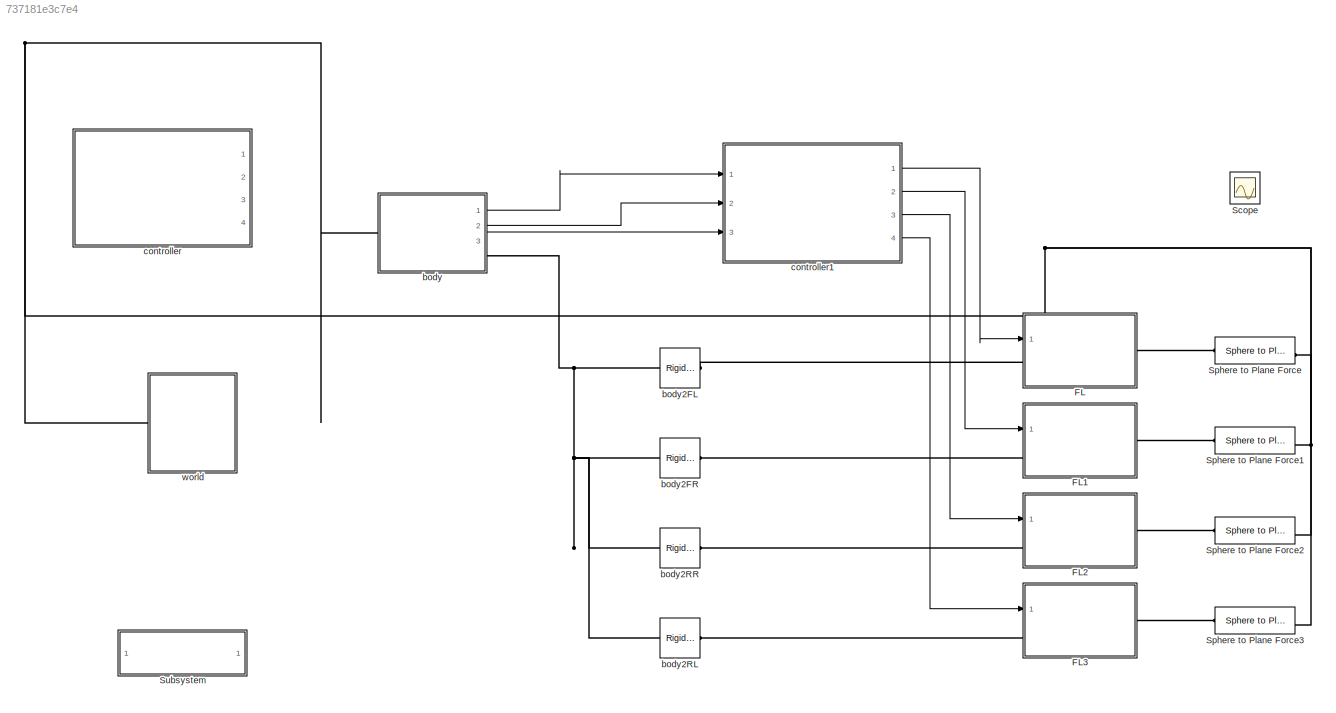
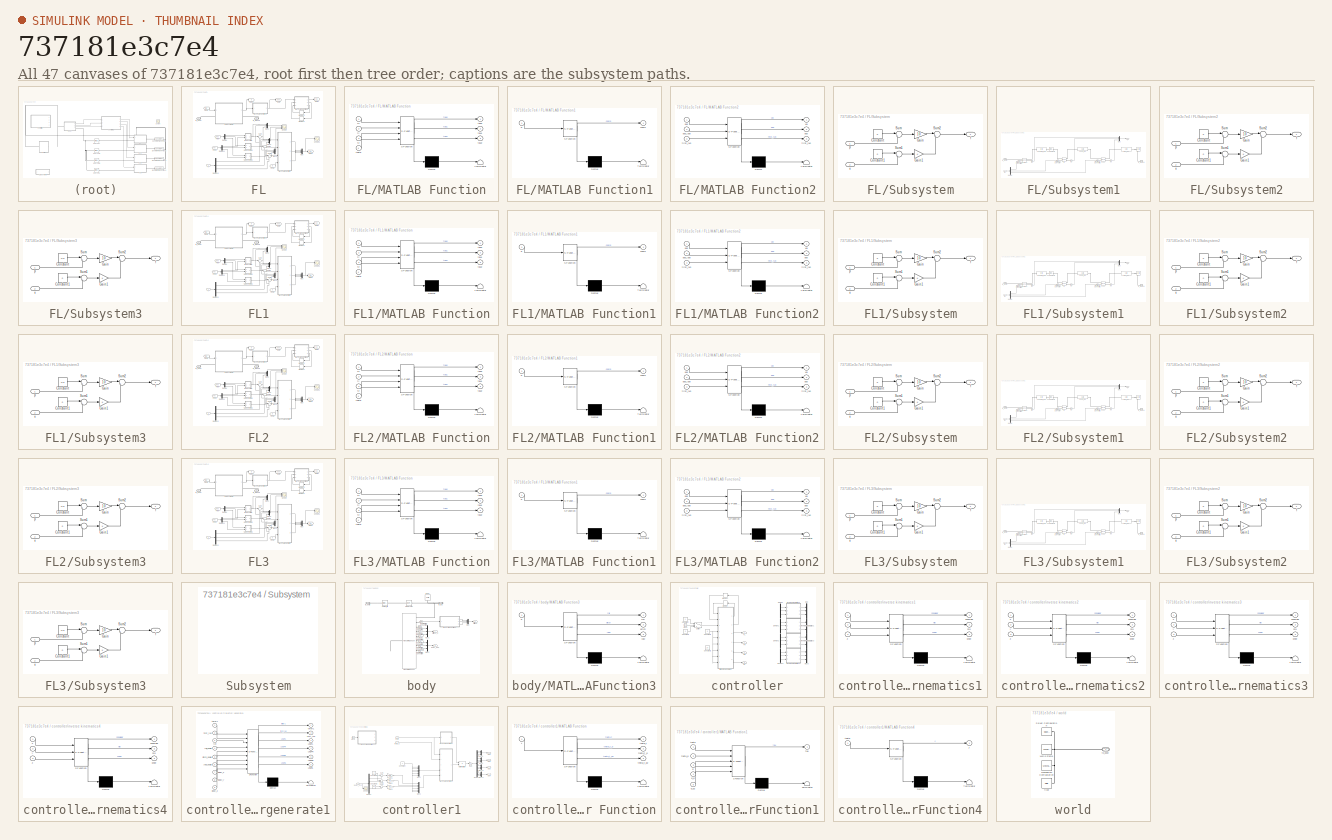
[diagram: thumbnail index - all 47 canvases of the model, root first then tree order]
MODEL slx_737181e3c7e4
KIND model
CONFIG AbsTol = auto
CONFIG EnableMultiTasking = on
CONFIG FixedStep = 0.001
CONFIG MaxStep = auto
CONFIG MinStep = auto
CONFIG RelTol = 1e-3
CONFIG SampleTimeConstraint = Unconstrained
CONFIG Solver = FixedStepAuto
CONFIG SolverName = FixedStepAuto
CONFIG StartTime = 0.0
CONFIG StopTime = 2
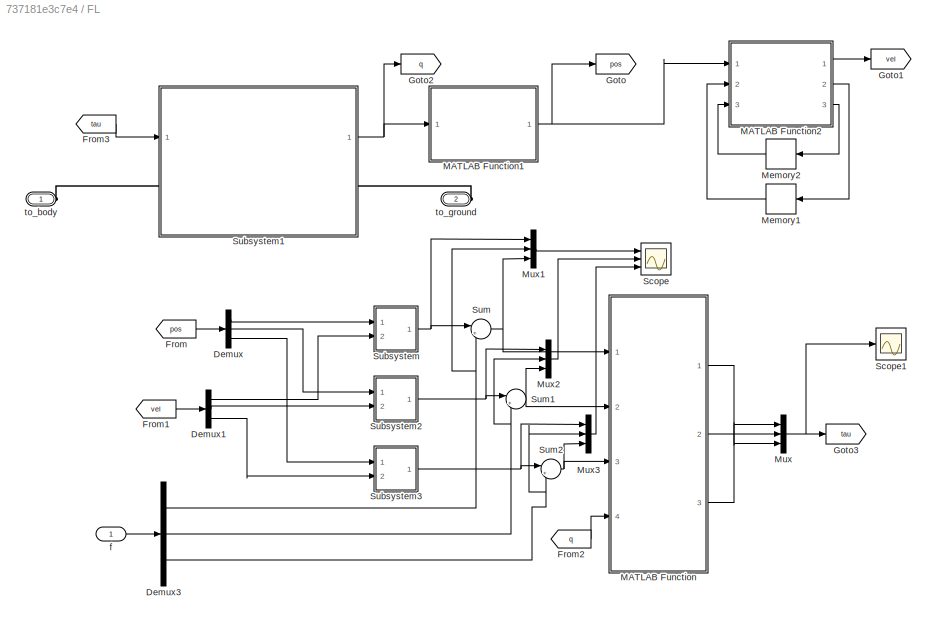
BLOCK [SubSystem] FL
  Ports = [1, 0, 0, 0, 0, 1, 1]
  RequestExecContextInheritance = off
BLOCK [Demux] FL/Demux
  DisplayOption = bar
  Outputs = 3
  Ports = [1, 3]
BLOCK [Demux] FL/Demux1
  DisplayOption = bar
  Outputs = 3
  Ports = [1, 3]
BLOCK [Demux] FL/Demux3
  DisplayOption = bar
  Outputs = 3
  Ports = [1, 3]
BLOCK [From] FL/From
  GotoTag = pos
BLOCK [From] FL/From1
  GotoTag = vel
BLOCK [From] FL/From2
  GotoTag = q
BLOCK [From] FL/From3
  GotoTag = tau
BLOCK [Goto] FL/Goto
  GotoTag = pos
BLOCK [Goto] FL/Goto1
  GotoTag = vel
BLOCK [Goto] FL/Goto2
  GotoTag = q
BLOCK [Goto] FL/Goto3
  GotoTag = tau
BLOCK [SubSystem] FL/MATLAB Function
  ErrorFcn = Stateflow.Translate.translate
  PermitHierarchicalResolution = ExplicitOnly
  Ports = [4, 3]
  RequestExecContextInheritance = off
  SFBlockType = MATLAB Function
  TreatAsAtomicUnit = on
BLOCK [Demux] FL/MATLAB Function/ Demux 
  Outputs = 1
  Ports = [1, 1]
BLOCK [S-Function] FL/MATLAB Function/ SFunction 
  EnableBusSupport = on
  FunctionName = sf_sfun
  PortCounts = [4 4]
  Ports = [4, 4]
  SFcnIsStateOwnerBlock = off
  SFunctionDeploymentMode = off
  Tag = Stateflow S-Function ForceControl_Quadruped_vmc 8
BLOCK [Terminator] FL/MATLAB Function/ Terminator 
BLOCK [Inport] FL/MATLAB Function/fx
  IconDisplay = Port number
BLOCK [Inport] FL/MATLAB Function/fy
  IconDisplay = Port number
  Port = 2
BLOCK [Inport] FL/MATLAB Function/fz
  IconDisplay = Port number
  Port = 3
BLOCK [Outport] FL/MATLAB Function/tau0
  IconDisplay = Port number
BLOCK [Outport] FL/MATLAB Function/tau1
  IconDisplay = Port number
  Port = 2
BLOCK [Outport] FL/MATLAB Function/tau2
  IconDisplay = Port number
  Port = 3
BLOCK [Inport] FL/MATLAB Function/theta
  IconDisplay = Port number
  Port = 4
BLOCK [SubSystem] FL/MATLAB Function1
  ErrorFcn = Stateflow.Translate.translate
  PermitHierarchicalResolution = ExplicitOnly
  Ports = [1, 1]
  RequestExecContextInheritance = off
  SFBlockType = MATLAB Function
  TreatAsAtomicUnit = on
BLOCK [Demux] FL/MATLAB Function1/ Demux 
  Outputs = 1
  Ports = [1, 1]
BLOCK [S-Function] FL/MATLAB Function1/ SFunction 
  EnableBusSupport = on
  FunctionName = sf_sfun
  PortCounts = [1 2]
  Ports = [1, 2]
  SFcnIsStateOwnerBlock = off
  SFunctionDeploymentMode = off
  Tag = Stateflow S-Function ForceControl_Quadruped_vmc 6
BLOCK [Terminator] FL/MATLAB Function1/ Terminator 
BLOCK [Outport] FL/MATLAB Function1/coord
  IconDisplay = Port number
BLOCK [Inport] FL/MATLAB Function1/q
  IconDisplay = Port number
BLOCK [SubSystem] FL/MATLAB Function2
  ErrorFcn = Stateflow.Translate.translate
  PermitHierarchicalResolution = ExplicitOnly
  Ports = [3, 3]
  RequestExecContextInheritance = off
  SFBlockType = MATLAB Function
  TreatAsAtomicUnit = on
BLOCK [Demux] FL/MATLAB Function2/ Demux 
  Outputs = 1
  Ports = [1, 1]
BLOCK [S-Function] FL/MATLAB Function2/ SFunction 
  EnableBusSupport = on
  FunctionName = sf_sfun
  PortCounts = [3 4]
  Ports = [3, 4]
  SFcnIsStateOwnerBlock = off
  SFunctionDeploymentMode = off
  Tag = Stateflow S-Function ForceControl_Quadruped_vmc 7
BLOCK [Terminator] FL/MATLAB Function2/ Terminator 
BLOCK [Outport] FL/MATLAB Function2/first_run
  IconDisplay = Port number
  Port = 3
BLOCK [Inport] FL/MATLAB Function2/first_run 
  IconDisplay = Port number
  Port = 3
BLOCK [Outport] FL/MATLAB Function2/pos
  IconDisplay = Port number
  Port = 2
BLOCK [Inport] FL/MATLAB Function2/pos 
  IconDisplay = Port number
BLOCK [Inport] FL/MATLAB Function2/pos_last
  IconDisplay = Port number
  Port = 2
BLOCK [Outport] FL/MATLAB Function2/vel
  IconDisplay = Port number
BLOCK [Memory] FL/Memory1
BLOCK [Memory] FL/Memory2
  InitialCondition = 1
BLOCK [Mux] FL/Mux
  DisplayOption = bar
  Inputs = 3
  Ports = [3, 1]
BLOCK [Mux] FL/Mux1
  DisplayOption = bar
  Inputs = 3
  Ports = [3, 1]
BLOCK [Mux] FL/Mux2
  DisplayOption = bar
  Inputs = 3
  Ports = [3, 1]
BLOCK [Mux] FL/Mux3
  DisplayOption = bar
  Inputs = 3
  Ports = [3, 1]
BLOCK [Scope] FL/Scope
  Floating = off
  NumInputPorts = 3
  Ports = [3]
  ScopeSpecificationString = Simulink.scopes.TimeScopeBlockCfg('CurrentConfiguration', extmgr.ConfigurationSet(extmgr.Configuration('Core','General UI',true),extmgr.Configuration('Core','Source UI',true),extmgr.Configuration('Sources','WiredSimulink',true,'DataLoggingVariableName','ScopeData1'),extmgr.Configuration('Visuals','Time Domain',true,'SerializedDisplays',{struct('MinYLimReal','-34.76462','MaxYLimReal','303.63001','Y...<+3047ch>
BLOCK [Scope] FL/Scope1
  Floating = off
  NumInputPorts = 1
  Ports = [1]
  ScopeSpecificationString = Simulink.scopes.TimeScopeBlockCfg('CurrentConfiguration', extmgr.ConfigurationSet(extmgr.Configuration('Core','General UI',true),extmgr.Configuration('Core','Source UI',true),extmgr.Configuration('Sources','WiredSimulink',true,'DataLoggingVariableName','ScopeData2'),extmgr.Configuration('Visuals','Time Domain',true,'SerializedDisplays',{struct('MinYLimReal','-79.62166','MaxYLimReal','50.34471','YL...<+1577ch>
BLOCK [SubSystem] FL/Subsystem
  Ports = [2, 1]
  RequestExecContextInheritance = off
BLOCK [Constant] FL/Subsystem/Constant
  Value = 0
BLOCK [Constant] FL/Subsystem/Constant1
  Value = 0
BLOCK [Gain] FL/Subsystem/Gain
  Gain = 10
  OutDataTypeStr = Inherit: Inherit via internal rule
  ParamDataTypeStr = Inherit: Inherit via internal rule
  SaturateOnIntegerOverflow = off
BLOCK [Gain] FL/Subsystem/Gain1
  OutDataTypeStr = Inherit: Inherit via internal rule
  ParamDataTypeStr = Inherit: Inherit via internal rule
  SaturateOnIntegerOverflow = off
BLOCK [Sum] FL/Subsystem/Sum
  IconShape = round
  InputSameDT = off
  Inputs = |+-
  OutDataTypeStr = Inherit: Inherit via internal rule
  Ports = [2, 1]
  SaturateOnIntegerOverflow = off
BLOCK [Sum] FL/Subsystem/Sum1
  IconShape = round
  InputSameDT = off
  Inputs = |+-
  OutDataTypeStr = Inherit: Inherit via internal rule
  Ports = [2, 1]
  SaturateOnIntegerOverflow = off
BLOCK [Sum] FL/Subsystem/Sum2
  IconShape = round
  InputSameDT = off
  Inputs = |++
  OutDataTypeStr = Inherit: Inherit via internal rule
  Ports = [2, 1]
  SaturateOnIntegerOverflow = off
BLOCK [Outport] FL/Subsystem/f
  IconDisplay = Port number
BLOCK [Inport] FL/Subsystem/p
  IconDisplay = Port number
BLOCK [Inport] FL/Subsystem/v
  IconDisplay = Port number
  Port = 2
BLOCK [SubSystem] FL/Subsystem1
  Ports = [1, 1, 0, 0, 0, 1, 1]
  RequestExecContextInheritance = off
BLOCK [Demux] FL/Subsystem1/Demux
  DisplayOption = bar
  Outputs = 3
  Ports = [1, 3]
BLOCK [Mux] FL/Subsystem1/Mux
  DisplayOption = bar
  Inputs = 3
  Ports = [3, 1]
BLOCK [Reference] FL/Subsystem1/Shoulder_leg  REF=sm_lib/Body Elements/Solid
  Ports = [0, 0, 0, 0, 0, 1, 1]
  SourceBlock = sm_lib/Body Elements/Solid
  SourceProductBaseCode = MS
  SourceProductName = Simscape Multibody
  SourceType = Solid
BLOCK [Reference] FL/Subsystem1/Simulink-PS Converter  REF=nesl_utility/Simulink-PS
Converter
  Ports = [1, 0, 0, 0, 0, 0, 1]
  SourceBlock = nesl_utility/Simulink-PS\nConverter
  SourceProductBaseCode = SS
  SourceProductName = Simscape
  SourceType = Simulink-PS\nConverter
BLOCK [Reference] FL/Subsystem1/Simulink-PS Converter1  REF=nesl_utility/Simulink-PS
Converter
  Ports = [1, 0, 0, 0, 0, 0, 1]
  SourceBlock = nesl_utility/Simulink-PS\nConverter
  SourceProductBaseCode = SS
  SourceProductName = Simscape
  SourceType = Simulink-PS\nConverter
BLOCK [Reference] FL/Subsystem1/Simulink-PS Converter2  REF=nesl_utility/Simulink-PS
Converter
  Ports = [1, 0, 0, 0, 0, 0, 1]
  SourceBlock = nesl_utility/Simulink-PS\nConverter
  SourceProductBaseCode = SS
  SourceProductName = Simscape
  SourceType = Simulink-PS\nConverter
BLOCK [Reference] FL/Subsystem1/foot  REF=sm_lib/Body Elements/Solid
  Ports = [0, 0, 0, 0, 0, 0, 1]
  SourceBlock = sm_lib/Body Elements/Solid
  SourceProductBaseCode = MS
  SourceProductName = Simscape Multibody
  SourceType = Solid
BLOCK [Reference] FL/Subsystem1/hip  REF=sm_lib/Joints/Revolute Joint
  Ports = [0, 0, 0, 0, 0, 2, 2]
  SourceBlock = sm_lib/Joints/Revolute Joint
  SourceProductBaseCode = MS
  SourceProductName = Simscape Multibody
  SourceType = Revolute Joint
BLOCK [Reference] FL/Subsystem1/knee  REF=sm_lib/Joints/Revolute Joint
  Ports = [0, 0, 0, 0, 0, 2, 2]
  SourceBlock = sm_lib/Joints/Revolute Joint
  SourceProductBaseCode = MS
  SourceProductName = Simscape Multibody
  SourceType = Revolute Joint
BLOCK [Reference] FL/Subsystem1/lower_leg  REF=sm_lib/Body Elements/Solid
  Ports = [0, 0, 0, 0, 0, 1, 1]
  SourceBlock = sm_lib/Body Elements/Solid
  SourceProductBaseCode = MS
  SourceProductName = Simscape Multibody
  SourceType = Solid
BLOCK [Outport] FL/Subsystem1/q
  IconDisplay = Port number
BLOCK [Reference] FL/Subsystem1/q0  REF=nesl_utility/PS-Simulink
Converter
  Ports = [0, 1, 0, 0, 0, 1]
  SourceBlock = nesl_utility/PS-Simulink\nConverter
  SourceProductBaseCode = SS
  SourceProductName = Simscape
  SourceType = PS-Simulink\nConverter
BLOCK [Reference] FL/Subsystem1/q1  REF=nesl_utility/PS-Simulink
Converter
  Ports = [0, 1, 0, 0, 0, 1]
  SourceBlock = nesl_utility/PS-Simulink\nConverter
  SourceProductBaseCode = SS
  SourceProductName = Simscape
  SourceType = PS-Simulink\nConverter
BLOCK [Reference] FL/Subsystem1/q2  REF=nesl_utility/PS-Simulink
Converter
  Ports = [0, 1, 0, 0, 0, 1]
  SourceBlock = nesl_utility/PS-Simulink\nConverter
  SourceProductBaseCode = SS
  SourceProductName = Simscape
  SourceType = PS-Simulink\nConverter
BLOCK [Reference] FL/Subsystem1/shoulder  REF=sm_lib/Joints/Revolute Joint
  Ports = [0, 0, 0, 0, 0, 2, 2]
  SourceBlock = sm_lib/Joints/Revolute Joint
  SourceProductBaseCode = MS
  SourceProductName = Simscape Multibody
  SourceType = Revolute Joint
BLOCK [Reference] FL/Subsystem1/shoulder2hip  REF=sm_lib/Frames and
Transforms/Rigid
Transform
  Ports = [0, 0, 0, 0, 0, 1, 1]
  SourceBlock = sm_lib/Frames and\nTransforms/Rigid\nTransform
  SourceProductBaseCode = MS
  SourceProductName = Simscape Multibody
  SourceType = Rigid\nTransform
BLOCK [Inport] FL/Subsystem1/tau
  IconDisplay = Port number
BLOCK [PMIOPort] FL/Subsystem1/to_body
  Side = Left
BLOCK [PMIOPort] FL/Subsystem1/to_ground
  Port = 2
  Side = Right
BLOCK [Reference] FL/Subsystem1/upper_leg  REF=sm_lib/Body Elements/Solid
  Ports = [0, 0, 0, 0, 0, 1, 1]
  SourceBlock = sm_lib/Body Elements/Solid
  SourceProductBaseCode = MS
  SourceProductName = Simscape Multibody
  SourceType = Solid
BLOCK [SubSystem] FL/Subsystem2
  Ports = [2, 1]
  RequestExecContextInheritance = off
BLOCK [Constant] FL/Subsystem2/Constant
  Value = 0
BLOCK [Constant] FL/Subsystem2/Constant1
  Value = 0
BLOCK [Gain] FL/Subsystem2/Gain
  Gain = 10
  OutDataTypeStr = Inherit: Inherit via internal rule
  ParamDataTypeStr = Inherit: Inherit via internal rule
  SaturateOnIntegerOverflow = off
BLOCK [Gain] FL/Subsystem2/Gain1
  OutDataTypeStr = Inherit: Inherit via internal rule
  ParamDataTypeStr = Inherit: Inherit via internal rule
  SaturateOnIntegerOverflow = off
BLOCK [Sum] FL/Subsystem2/Sum
  IconShape = round
  InputSameDT = off
  Inputs = |+-
  OutDataTypeStr = Inherit: Inherit via internal rule
  Ports = [2, 1]
  SaturateOnIntegerOverflow = off
BLOCK [Sum] FL/Subsystem2/Sum1
  IconShape = round
  InputSameDT = off
  Inputs = |+-
  OutDataTypeStr = Inherit: Inherit via internal rule
  Ports = [2, 1]
  SaturateOnIntegerOverflow = off
BLOCK [Sum] FL/Subsystem2/Sum2
  IconShape = round
  InputSameDT = off
  Inputs = |++
  OutDataTypeStr = Inherit: Inherit via internal rule
  Ports = [2, 1]
  SaturateOnIntegerOverflow = off
BLOCK [Outport] FL/Subsystem2/f
  IconDisplay = Port number
BLOCK [Inport] FL/Subsystem2/p
  IconDisplay = Port number
BLOCK [Inport] FL/Subsystem2/v
  IconDisplay = Port number
  Port = 2
BLOCK [SubSystem] FL/Subsystem3
  Ports = [2, 1]
  RequestExecContextInheritance = off
BLOCK [Constant] FL/Subsystem3/Constant
  Value = -0.6
BLOCK [Constant] FL/Subsystem3/Constant1
  Value = 0
BLOCK [Gain] FL/Subsystem3/Gain
  Gain = 10
  OutDataTypeStr = Inherit: Inherit via internal rule
  ParamDataTypeStr = Inherit: Inherit via internal rule
  SaturateOnIntegerOverflow = off
BLOCK [Gain] FL/Subsystem3/Gain1
  OutDataTypeStr = Inherit: Inherit via internal rule
  ParamDataTypeStr = Inherit: Inherit via internal rule
  SaturateOnIntegerOverflow = off
BLOCK [Sum] FL/Subsystem3/Sum
  IconShape = round
  InputSameDT = off
  Inputs = |+-
  OutDataTypeStr = Inherit: Inherit via internal rule
  Ports = [2, 1]
  SaturateOnIntegerOverflow = off
BLOCK [Sum] FL/Subsystem3/Sum1
  IconShape = round
  InputSameDT = off
  Inputs = |+-
  OutDataTypeStr = Inherit: Inherit via internal rule
  Ports = [2, 1]
  SaturateOnIntegerOverflow = off
BLOCK [Sum] FL/Subsystem3/Sum2
  IconShape = round
  InputSameDT = off
  Inputs = |++
  OutDataTypeStr = Inherit: Inherit via internal rule
  Ports = [2, 1]
  SaturateOnIntegerOverflow = off
BLOCK [Outport] FL/Subsystem3/f
  IconDisplay = Port number
BLOCK [Inport] FL/Subsystem3/p
  IconDisplay = Port number
BLOCK [Inport] FL/Subsystem3/v
  IconDisplay = Port number
  Port = 2
BLOCK [Sum] FL/Sum
  IconShape = round
  InputSameDT = off
  Inputs = |++
  OutDataTypeStr = Inherit: Inherit via internal rule
  Ports = [2, 1]
  SaturateOnIntegerOverflow = off
BLOCK [Sum] FL/Sum1
  IconShape = round
  InputSameDT = off
  Inputs = |++
  OutDataTypeStr = Inherit: Inherit via internal rule
  Ports = [2, 1]
  SaturateOnIntegerOverflow = off
BLOCK [Sum] FL/Sum2
  IconShape = round
  InputSameDT = off
  Inputs = |++
  OutDataTypeStr = Inherit: Inherit via internal rule
  Ports = [2, 1]
  SaturateOnIntegerOverflow = off
BLOCK [Inport] FL/f
  IconDisplay = Port number
BLOCK [PMIOPort] FL/to_body
  Side = Left
BLOCK [PMIOPort] FL/to_ground
  Port = 2
  Side = Right
BLOCK [SubSystem] FL1
  Ports = [1, 0, 0, 0, 0, 1, 1]
  RequestExecContextInheritance = off
BLOCK [Demux] FL1/Demux
  DisplayOption = bar
  Outputs = 3
  Ports = [1, 3]
BLOCK [Demux] FL1/Demux1
  DisplayOption = bar
  Outputs = 3
  Ports = [1, 3]
BLOCK [Demux] FL1/Demux3
  DisplayOption = bar
  Outputs = 3
  Ports = [1, 3]
BLOCK [From] FL1/From
  GotoTag = pos
BLOCK [From] FL1/From1
  GotoTag = vel
BLOCK [From] FL1/From2
  GotoTag = q
BLOCK [From] FL1/From3
  GotoTag = tau
BLOCK [Goto] FL1/Goto
  GotoTag = pos
BLOCK [Goto] FL1/Goto1
  GotoTag = vel
BLOCK [Goto] FL1/Goto2
  GotoTag = q
BLOCK [Goto] FL1/Goto3
  GotoTag = tau
BLOCK [SubSystem] FL1/MATLAB Function
  ErrorFcn = Stateflow.Translate.translate
  PermitHierarchicalResolution = ExplicitOnly
  Ports = [4, 3]
  RequestExecContextInheritance = off
  SFBlockType = MATLAB Function
  TreatAsAtomicUnit = on
BLOCK [Demux] FL1/MATLAB Function/ Demux 
  Outputs = 1
  Ports = [1, 1]
BLOCK [S-Function] FL1/MATLAB Function/ SFunction 
  EnableBusSupport = on
  FunctionName = sf_sfun
  PortCounts = [4 4]
  Ports = [4, 4]
  SFcnIsStateOwnerBlock = off
  SFunctionDeploymentMode = off
  Tag = Stateflow S-Function ForceControl_Quadruped_vmc 9
BLOCK [Terminator] FL1/MATLAB Function/ Terminator 
BLOCK [Inport] FL1/MATLAB Function/fx
  IconDisplay = Port number
BLOCK [Inport] FL1/MATLAB Function/fy
  IconDisplay = Port number
  Port = 2
BLOCK [Inport] FL1/MATLAB Function/fz
  IconDisplay = Port number
  Port = 3
BLOCK [Outport] FL1/MATLAB Function/tau0
  IconDisplay = Port number
BLOCK [Outport] FL1/MATLAB Function/tau1
  IconDisplay = Port number
  Port = 2
BLOCK [Outport] FL1/MATLAB Function/tau2
  IconDisplay = Port number
  Port = 3
BLOCK [Inport] FL1/MATLAB Function/theta
  IconDisplay = Port number
  Port = 4
BLOCK [SubSystem] FL1/MATLAB Function1
  ErrorFcn = Stateflow.Translate.translate
  PermitHierarchicalResolution = ExplicitOnly
  Ports = [1, 1]
  RequestExecContextInheritance = off
  SFBlockType = MATLAB Function
  TreatAsAtomicUnit = on
BLOCK [Demux] FL1/MATLAB Function1/ Demux 
  Outputs = 1
  Ports = [1, 1]
BLOCK [S-Function] FL1/MATLAB Function1/ SFunction 
  EnableBusSupport = on
  FunctionName = sf_sfun
  PortCounts = [1 2]
  Ports = [1, 2]
  SFcnIsStateOwnerBlock = off
  SFunctionDeploymentMode = off
  Tag = Stateflow S-Function ForceControl_Quadruped_vmc 10
BLOCK [Terminator] FL1/MATLAB Function1/ Terminator 
BLOCK [Outport] FL1/MATLAB Function1/coord
  IconDisplay = Port number
BLOCK [Inport] FL1/MATLAB Function1/q
  IconDisplay = Port number
BLOCK [SubSystem] FL1/MATLAB Function2
  ErrorFcn = Stateflow.Translate.translate
  PermitHierarchicalResolution = ExplicitOnly
  Ports = [3, 3]
  RequestExecContextInheritance = off
  SFBlockType = MATLAB Function
  TreatAsAtomicUnit = on
BLOCK [Demux] FL1/MATLAB Function2/ Demux 
  Outputs = 1
  Ports = [1, 1]
BLOCK [S-Function] FL1/MATLAB Function2/ SFunction 
  EnableBusSupport = on
  FunctionName = sf_sfun
  PortCounts = [3 4]
  Ports = [3, 4]
  SFcnIsStateOwnerBlock = off
  SFunctionDeploymentMode = off
  Tag = Stateflow S-Function ForceControl_Quadruped_vmc 11
BLOCK [Terminator] FL1/MATLAB Function2/ Terminator 
BLOCK [Outport] FL1/MATLAB Function2/first_run
  IconDisplay = Port number
  Port = 3
BLOCK [Inport] FL1/MATLAB Function2/first_run 
  IconDisplay = Port number
  Port = 3
BLOCK [Outport] FL1/MATLAB Function2/pos
  IconDisplay = Port number
  Port = 2
BLOCK [Inport] FL1/MATLAB Function2/pos 
  IconDisplay = Port number
BLOCK [Inport] FL1/MATLAB Function2/pos_last
  IconDisplay = Port number
  Port = 2
BLOCK [Outport] FL1/MATLAB Function2/vel
  IconDisplay = Port number
BLOCK [Memory] FL1/Memory1
BLOCK [Memory] FL1/Memory2
  InitialCondition = 1
BLOCK [Mux] FL1/Mux
  DisplayOption = bar
  Inputs = 3
  Ports = [3, 1]
BLOCK [Mux] FL1/Mux1
  DisplayOption = bar
  Inputs = 3
  Ports = [3, 1]
BLOCK [Mux] FL1/Mux2
  DisplayOption = bar
  Inputs = 3
  Ports = [3, 1]
BLOCK [Mux] FL1/Mux3
  DisplayOption = bar
  Inputs = 3
  Ports = [3, 1]
BLOCK [Scope] FL1/Scope
  Floating = off
  NumInputPorts = 3
  Ports = [3]
  ScopeSpecificationString = Simulink.scopes.TimeScopeBlockCfg('CurrentConfiguration', extmgr.ConfigurationSet(extmgr.Configuration('Core','General UI',true),extmgr.Configuration('Core','Source UI',true),extmgr.Configuration('Sources','WiredSimulink',true,'DataLoggingVariableName','ScopeData1'),extmgr.Configuration('Visuals','Time Domain',true,'SerializedDisplays',{struct('MinYLimReal','-40.74443','MaxYLimReal','34.60294','YL...<+3015ch>  <repeated x3 — deduplicated; at blocks: Scope>
BLOCK [Scope] FL1/Scope1
  Floating = off
  NumInputPorts = 1
  Ports = [1]
  ScopeSpecificationString = Simulink.scopes.TimeScopeBlockCfg('CurrentConfiguration', extmgr.ConfigurationSet(extmgr.Configuration('Core','General UI',true),extmgr.Configuration('Core','Source UI',true),extmgr.Configuration('Sources','WiredSimulink',true,'DataLoggingVariableName','ScopeData2'),extmgr.Configuration('Visuals','Time Domain',true,'SerializedDisplays',{struct('MinYLimReal','-108.59096','MaxYLimReal','71.07869','Y...<+1570ch>  <repeated x3 — deduplicated; at blocks: Scope1>
BLOCK [SubSystem] FL1/Subsystem
  Ports = [2, 1]
  RequestExecContextInheritance = off
BLOCK [Constant] FL1/Subsystem/Constant
  Value = 0
BLOCK [Constant] FL1/Subsystem/Constant1
  Value = 0
BLOCK [Gain] FL1/Subsystem/Gain
  Gain = 10
  OutDataTypeStr = Inherit: Inherit via internal rule
  ParamDataTypeStr = Inherit: Inherit via internal rule
  SaturateOnIntegerOverflow = off
BLOCK [Gain] FL1/Subsystem/Gain1
  OutDataTypeStr = Inherit: Inherit via internal rule
  ParamDataTypeStr = Inherit: Inherit via internal rule
  SaturateOnIntegerOverflow = off
BLOCK [Sum] FL1/Subsystem/Sum
  IconShape = round
  InputSameDT = off
  Inputs = |+-
  OutDataTypeStr = Inherit: Inherit via internal rule
  Ports = [2, 1]
  SaturateOnIntegerOverflow = off
BLOCK [Sum] FL1/Subsystem/Sum1
  IconShape = round
  InputSameDT = off
  Inputs = |+-
  OutDataTypeStr = Inherit: Inherit via internal rule
  Ports = [2, 1]
  SaturateOnIntegerOverflow = off
BLOCK [Sum] FL1/Subsystem/Sum2
  IconShape = round
  InputSameDT = off
  Inputs = |++
  OutDataTypeStr = Inherit: Inherit via internal rule
  Ports = [2, 1]
  SaturateOnIntegerOverflow = off
BLOCK [Outport] FL1/Subsystem/f
  IconDisplay = Port number
BLOCK [Inport] FL1/Subsystem/p
  IconDisplay = Port number
BLOCK [Inport] FL1/Subsystem/v
  IconDisplay = Port number
  Port = 2
BLOCK [SubSystem] FL1/Subsystem1
  Ports = [1, 1, 0, 0, 0, 1, 1]
  RequestExecContextInheritance = off
BLOCK [Demux] FL1/Subsystem1/Demux
  DisplayOption = bar
  Outputs = 3
  Ports = [1, 3]
BLOCK [Mux] FL1/Subsystem1/Mux
  DisplayOption = bar
  Inputs = 3
  Ports = [3, 1]
BLOCK [Reference] FL1/Subsystem1/Shoulder_leg  REF=sm_lib/Body Elements/Solid
  Ports = [0, 0, 0, 0, 0, 1, 1]
  SourceBlock = sm_lib/Body Elements/Solid
  SourceProductBaseCode = MS
  SourceProductName = Simscape Multibody
  SourceType = Solid
BLOCK [Reference] FL1/Subsystem1/Simulink-PS Converter  REF=nesl_utility/Simulink-PS
Converter
  Ports = [1, 0, 0, 0, 0, 0, 1]
  SourceBlock = nesl_utility/Simulink-PS\nConverter
  SourceProductBaseCode = SS
  SourceProductName = Simscape
  SourceType = Simulink-PS\nConverter
BLOCK [Reference] FL1/Subsystem1/Simulink-PS Converter1  REF=nesl_utility/Simulink-PS
Converter
  Ports = [1, 0, 0, 0, 0, 0, 1]
  SourceBlock = nesl_utility/Simulink-PS\nConverter
  SourceProductBaseCode = SS
  SourceProductName = Simscape
  SourceType = Simulink-PS\nConverter
BLOCK [Reference] FL1/Subsystem1/Simulink-PS Converter2  REF=nesl_utility/Simulink-PS
Converter
  Ports = [1, 0, 0, 0, 0, 0, 1]
  SourceBlock = nesl_utility/Simulink-PS\nConverter
  SourceProductBaseCode = SS
  SourceProductName = Simscape
  SourceType = Simulink-PS\nConverter
BLOCK [Reference] FL1/Subsystem1/foot  REF=sm_lib/Body Elements/Solid
  Ports = [0, 0, 0, 0, 0, 0, 1]
  SourceBlock = sm_lib/Body Elements/Solid
  SourceProductBaseCode = MS
  SourceProductName = Simscape Multibody
  SourceType = Solid
BLOCK [Reference] FL1/Subsystem1/hip  REF=sm_lib/Joints/Revolute Joint
  Ports = [0, 0, 0, 0, 0, 2, 2]
  SourceBlock = sm_lib/Joints/Revolute Joint
  SourceProductBaseCode = MS
  SourceProductName = Simscape Multibody
  SourceType = Revolute Joint
BLOCK [Reference] FL1/Subsystem1/knee  REF=sm_lib/Joints/Revolute Joint
  Ports = [0, 0, 0, 0, 0, 2, 2]
  SourceBlock = sm_lib/Joints/Revolute Joint
  SourceProductBaseCode = MS
  SourceProductName = Simscape Multibody
  SourceType = Revolute Joint
BLOCK [Reference] FL1/Subsystem1/lower_leg  REF=sm_lib/Body Elements/Solid
  Ports = [0, 0, 0, 0, 0, 1, 1]
  SourceBlock = sm_lib/Body Elements/Solid
  SourceProductBaseCode = MS
  SourceProductName = Simscape Multibody
  SourceType = Solid
BLOCK [Outport] FL1/Subsystem1/q
  IconDisplay = Port number
BLOCK [Reference] FL1/Subsystem1/q0  REF=nesl_utility/PS-Simulink
Converter
  Ports = [0, 1, 0, 0, 0, 1]
  SourceBlock = nesl_utility/PS-Simulink\nConverter
  SourceProductBaseCode = SS
  SourceProductName = Simscape
  SourceType = PS-Simulink\nConverter
BLOCK [Reference] FL1/Subsystem1/q1  REF=nesl_utility/PS-Simulink
Converter
  Ports = [0, 1, 0, 0, 0, 1]
  SourceBlock = nesl_utility/PS-Simulink\nConverter
  SourceProductBaseCode = SS
  SourceProductName = Simscape
  SourceType = PS-Simulink\nConverter
BLOCK [Reference] FL1/Subsystem1/q2  REF=nesl_utility/PS-Simulink
Converter
  Ports = [0, 1, 0, 0, 0, 1]
  SourceBlock = nesl_utility/PS-Simulink\nConverter
  SourceProductBaseCode = SS
  SourceProductName = Simscape
  SourceType = PS-Simulink\nConverter
BLOCK [Reference] FL1/Subsystem1/shoulder  REF=sm_lib/Joints/Revolute Joint
  Ports = [0, 0, 0, 0, 0, 2, 2]
  SourceBlock = sm_lib/Joints/Revolute Joint
  SourceProductBaseCode = MS
  SourceProductName = Simscape Multibody
  SourceType = Revolute Joint
BLOCK [Reference] FL1/Subsystem1/shoulder2hip  REF=sm_lib/Frames and
Transforms/Rigid
Transform
  Ports = [0, 0, 0, 0, 0, 1, 1]
  SourceBlock = sm_lib/Frames and\nTransforms/Rigid\nTransform
  SourceProductBaseCode = MS
  SourceProductName = Simscape Multibody
  SourceType = Rigid\nTransform
BLOCK [Inport] FL1/Subsystem1/tau
  IconDisplay = Port number
BLOCK [PMIOPort] FL1/Subsystem1/to_body
  Side = Left
BLOCK [PMIOPort] FL1/Subsystem1/to_ground
  Port = 2
  Side = Right
BLOCK [Reference] FL1/Subsystem1/upper_leg  REF=sm_lib/Body Elements/Solid
  Ports = [0, 0, 0, 0, 0, 1, 1]
  SourceBlock = sm_lib/Body Elements/Solid
  SourceProductBaseCode = MS
  SourceProductName = Simscape Multibody
  SourceType = Solid
BLOCK [SubSystem] FL1/Subsystem2
  Ports = [2, 1]
  RequestExecContextInheritance = off
BLOCK [Constant] FL1/Subsystem2/Constant
  Value = 0
BLOCK [Constant] FL1/Subsystem2/Constant1
  Value = 0
BLOCK [Gain] FL1/Subsystem2/Gain
  Gain = 10
  OutDataTypeStr = Inherit: Inherit via internal rule
  ParamDataTypeStr = Inherit: Inherit via internal rule
  SaturateOnIntegerOverflow = off
BLOCK [Gain] FL1/Subsystem2/Gain1
  OutDataTypeStr = Inherit: Inherit via internal rule
  ParamDataTypeStr = Inherit: Inherit via internal rule
  SaturateOnIntegerOverflow = off
BLOCK [Sum] FL1/Subsystem2/Sum
  IconShape = round
  InputSameDT = off
  Inputs = |+-
  OutDataTypeStr = Inherit: Inherit via internal rule
  Ports = [2, 1]
  SaturateOnIntegerOverflow = off
BLOCK [Sum] FL1/Subsystem2/Sum1
  IconShape = round
  InputSameDT = off
  Inputs = |+-
  OutDataTypeStr = Inherit: Inherit via internal rule
  Ports = [2, 1]
  SaturateOnIntegerOverflow = off
BLOCK [Sum] FL1/Subsystem2/Sum2
  IconShape = round
  InputSameDT = off
  Inputs = |++
  OutDataTypeStr = Inherit: Inherit via internal rule
  Ports = [2, 1]
  SaturateOnIntegerOverflow = off
BLOCK [Outport] FL1/Subsystem2/f
  IconDisplay = Port number
BLOCK [Inport] FL1/Subsystem2/p
  IconDisplay = Port number
BLOCK [Inport] FL1/Subsystem2/v
  IconDisplay = Port number
  Port = 2
BLOCK [SubSystem] FL1/Subsystem3
  Ports = [2, 1]
  RequestExecContextInheritance = off
BLOCK [Constant] FL1/Subsystem3/Constant
  Value = -0.6
BLOCK [Constant] FL1/Subsystem3/Constant1
  Value = 0
BLOCK [Gain] FL1/Subsystem3/Gain
  Gain = 10
  OutDataTypeStr = Inherit: Inherit via internal rule
  ParamDataTypeStr = Inherit: Inherit via internal rule
  SaturateOnIntegerOverflow = off
BLOCK [Gain] FL1/Subsystem3/Gain1
  OutDataTypeStr = Inherit: Inherit via internal rule
  ParamDataTypeStr = Inherit: Inherit via internal rule
  SaturateOnIntegerOverflow = off
BLOCK [Sum] FL1/Subsystem3/Sum
  IconShape = round
  InputSameDT = off
  Inputs = |+-
  OutDataTypeStr = Inherit: Inherit via internal rule
  Ports = [2, 1]
  SaturateOnIntegerOverflow = off
BLOCK [Sum] FL1/Subsystem3/Sum1
  IconShape = round
  InputSameDT = off
  Inputs = |+-
  OutDataTypeStr = Inherit: Inherit via internal rule
  Ports = [2, 1]
  SaturateOnIntegerOverflow = off
BLOCK [Sum] FL1/Subsystem3/Sum2
  IconShape = round
  InputSameDT = off
  Inputs = |++
  OutDataTypeStr = Inherit: Inherit via internal rule
  Ports = [2, 1]
  SaturateOnIntegerOverflow = off
BLOCK [Outport] FL1/Subsystem3/f
  IconDisplay = Port number
BLOCK [Inport] FL1/Subsystem3/p
  IconDisplay = Port number
BLOCK [Inport] FL1/Subsystem3/v
  IconDisplay = Port number
  Port = 2
BLOCK [Sum] FL1/Sum
  IconShape = round
  InputSameDT = off
  Inputs = |++
  OutDataTypeStr = Inherit: Inherit via internal rule
  Ports = [2, 1]
  SaturateOnIntegerOverflow = off
BLOCK [Sum] FL1/Sum1
  IconShape = round
  InputSameDT = off
  Inputs = |++
  OutDataTypeStr = Inherit: Inherit via internal rule
  Ports = [2, 1]
  SaturateOnIntegerOverflow = off
BLOCK [Sum] FL1/Sum2
  IconShape = round
  InputSameDT = off
  Inputs = |++
  OutDataTypeStr = Inherit: Inherit via internal rule
  Ports = [2, 1]
  SaturateOnIntegerOverflow = off
BLOCK [Inport] FL1/f
  IconDisplay = Port number
BLOCK [PMIOPort] FL1/to_body
  Side = Left
BLOCK [PMIOPort] FL1/to_ground
  Port = 2
  Side = Right
BLOCK [SubSystem] FL2
  Ports = [1, 0, 0, 0, 0, 1, 1]
  RequestExecContextInheritance = off
BLOCK [Demux] FL2/Demux
  DisplayOption = bar
  Outputs = 3
  Ports = [1, 3]
BLOCK [Demux] FL2/Demux1
  DisplayOption = bar
  Outputs = 3
  Ports = [1, 3]
BLOCK [Demux] FL2/Demux3
  DisplayOption = bar
  Outputs = 3
  Ports = [1, 3]
BLOCK [From] FL2/From
  GotoTag = pos
BLOCK [From] FL2/From1
  GotoTag = vel
BLOCK [From] FL2/From2
  GotoTag = q
BLOCK [From] FL2/From3
  GotoTag = tau
BLOCK [Goto] FL2/Goto
  GotoTag = pos
BLOCK [Goto] FL2/Goto1
  GotoTag = vel
BLOCK [Goto] FL2/Goto2
  GotoTag = q
BLOCK [Goto] FL2/Goto3
  GotoTag = tau
BLOCK [SubSystem] FL2/MATLAB Function
  ErrorFcn = Stateflow.Translate.translate
  PermitHierarchicalResolution = ExplicitOnly
  Ports = [4, 3]
  RequestExecContextInheritance = off
  SFBlockType = MATLAB Function
  TreatAsAtomicUnit = on
BLOCK [Demux] FL2/MATLAB Function/ Demux 
  Outputs = 1
  Ports = [1, 1]
BLOCK [S-Function] FL2/MATLAB Function/ SFunction 
  EnableBusSupport = on
  FunctionName = sf_sfun
  PortCounts = [4 4]
  Ports = [4, 4]
  SFcnIsStateOwnerBlock = off
  SFunctionDeploymentMode = off
  Tag = Stateflow S-Function ForceControl_Quadruped_vmc 12
BLOCK [Terminator] FL2/MATLAB Function/ Terminator 
BLOCK [Inport] FL2/MATLAB Function/fx
  IconDisplay = Port number
BLOCK [Inport] FL2/MATLAB Function/fy
  IconDisplay = Port number
  Port = 2
BLOCK [Inport] FL2/MATLAB Function/fz
  IconDisplay = Port number
  Port = 3
BLOCK [Outport] FL2/MATLAB Function/tau0
  IconDisplay = Port number
BLOCK [Outport] FL2/MATLAB Function/tau1
  IconDisplay = Port number
  Port = 2
BLOCK [Outport] FL2/MATLAB Function/tau2
  IconDisplay = Port number
  Port = 3
BLOCK [Inport] FL2/MATLAB Function/theta
  IconDisplay = Port number
  Port = 4
BLOCK [SubSystem] FL2/MATLAB Function1
  ErrorFcn = Stateflow.Translate.translate
  PermitHierarchicalResolution = ExplicitOnly
  Ports = [1, 1]
  RequestExecContextInheritance = off
  SFBlockType = MATLAB Function
  TreatAsAtomicUnit = on
BLOCK [Demux] FL2/MATLAB Function1/ Demux 
  Outputs = 1
  Ports = [1, 1]
BLOCK [S-Function] FL2/MATLAB Function1/ SFunction 
  EnableBusSupport = on
  FunctionName = sf_sfun
  PortCounts = [1 2]
  Ports = [1, 2]
  SFcnIsStateOwnerBlock = off
  SFunctionDeploymentMode = off
  Tag = Stateflow S-Function ForceControl_Quadruped_vmc 13
BLOCK [Terminator] FL2/MATLAB Function1/ Terminator 
BLOCK [Outport] FL2/MATLAB Function1/coord
  IconDisplay = Port number
BLOCK [Inport] FL2/MATLAB Function1/q
  IconDisplay = Port number
BLOCK [SubSystem] FL2/MATLAB Function2
  ErrorFcn = Stateflow.Translate.translate
  PermitHierarchicalResolution = ExplicitOnly
  Ports = [3, 3]
  RequestExecContextInheritance = off
  SFBlockType = MATLAB Function
  TreatAsAtomicUnit = on
BLOCK [Demux] FL2/MATLAB Function2/ Demux 
  Outputs = 1
  Ports = [1, 1]
BLOCK [S-Function] FL2/MATLAB Function2/ SFunction 
  EnableBusSupport = on
  FunctionName = sf_sfun
  PortCounts = [3 4]
  Ports = [3, 4]
  SFcnIsStateOwnerBlock = off
  SFunctionDeploymentMode = off
  Tag = Stateflow S-Function ForceControl_Quadruped_vmc 14
BLOCK [Terminator] FL2/MATLAB Function2/ Terminator 
BLOCK [Outport] FL2/MATLAB Function2/first_run
  IconDisplay = Port number
  Port = 3
BLOCK [Inport] FL2/MATLAB Function2/first_run 
  IconDisplay = Port number
  Port = 3
BLOCK [Outport] FL2/MATLAB Function2/pos
  IconDisplay = Port number
  Port = 2
BLOCK [Inport] FL2/MATLAB Function2/pos 
  IconDisplay = Port number
BLOCK [Inport] FL2/MATLAB Function2/pos_last
  IconDisplay = Port number
  Port = 2
BLOCK [Outport] FL2/MATLAB Function2/vel
  IconDisplay = Port number
BLOCK [Memory] FL2/Memory1
BLOCK [Memory] FL2/Memory2
  InitialCondition = 1
BLOCK [Mux] FL2/Mux
  DisplayOption = bar
  Inputs = 3
  Ports = [3, 1]
BLOCK [Mux] FL2/Mux1
  DisplayOption = bar
  Inputs = 3
  Ports = [3, 1]
BLOCK [Mux] FL2/Mux2
  DisplayOption = bar
  Inputs = 3
  Ports = [3, 1]
BLOCK [Mux] FL2/Mux3
  DisplayOption = bar
  Inputs = 3
  Ports = [3, 1]
BLOCK [Scope] FL2/Scope
  Floating = off
  NumInputPorts = 3
  Ports = [3]
BLOCK [Scope] FL2/Scope1
  Floating = off
  NumInputPorts = 1
  Ports = [1]
BLOCK [SubSystem] FL2/Subsystem
  Ports = [2, 1]
  RequestExecContextInheritance = off
BLOCK [Constant] FL2/Subsystem/Constant
  Value = 0
BLOCK [Constant] FL2/Subsystem/Constant1
  Value = 0
BLOCK [Gain] FL2/Subsystem/Gain
  Gain = 10
  OutDataTypeStr = Inherit: Inherit via internal rule
  ParamDataTypeStr = Inherit: Inherit via internal rule
  SaturateOnIntegerOverflow = off
BLOCK [Gain] FL2/Subsystem/Gain1
  OutDataTypeStr = Inherit: Inherit via internal rule
  ParamDataTypeStr = Inherit: Inherit via internal rule
  SaturateOnIntegerOverflow = off
BLOCK [Sum] FL2/Subsystem/Sum
  IconShape = round
  InputSameDT = off
  Inputs = |+-
  OutDataTypeStr = Inherit: Inherit via internal rule
  Ports = [2, 1]
  SaturateOnIntegerOverflow = off
BLOCK [Sum] FL2/Subsystem/Sum1
  IconShape = round
  InputSameDT = off
  Inputs = |+-
  OutDataTypeStr = Inherit: Inherit via internal rule
  Ports = [2, 1]
  SaturateOnIntegerOverflow = off
BLOCK [Sum] FL2/Subsystem/Sum2
  IconShape = round
  InputSameDT = off
  Inputs = |++
  OutDataTypeStr = Inherit: Inherit via internal rule
  Ports = [2, 1]
  SaturateOnIntegerOverflow = off
BLOCK [Outport] FL2/Subsystem/f
  IconDisplay = Port number
BLOCK [Inport] FL2/Subsystem/p
  IconDisplay = Port number
BLOCK [Inport] FL2/Subsystem/v
  IconDisplay = Port number
  Port = 2
BLOCK [SubSystem] FL2/Subsystem1
  Ports = [1, 1, 0, 0, 0, 1, 1]
  RequestExecContextInheritance = off
BLOCK [Demux] FL2/Subsystem1/Demux
  DisplayOption = bar
  Outputs = 3
  Ports = [1, 3]
BLOCK [Mux] FL2/Subsystem1/Mux
  DisplayOption = bar
  Inputs = 3
  Ports = [3, 1]
BLOCK [Reference] FL2/Subsystem1/Shoulder_leg  REF=sm_lib/Body Elements/Solid
  Ports = [0, 0, 0, 0, 0, 1, 1]
  SourceBlock = sm_lib/Body Elements/Solid
  SourceProductBaseCode = MS
  SourceProductName = Simscape Multibody
  SourceType = Solid
BLOCK [Reference] FL2/Subsystem1/Simulink-PS Converter  REF=nesl_utility/Simulink-PS
Converter
  Ports = [1, 0, 0, 0, 0, 0, 1]
  SourceBlock = nesl_utility/Simulink-PS\nConverter
  SourceProductBaseCode = SS
  SourceProductName = Simscape
  SourceType = Simulink-PS\nConverter
BLOCK [Reference] FL2/Subsystem1/Simulink-PS Converter1  REF=nesl_utility/Simulink-PS
Converter
  Ports = [1, 0, 0, 0, 0, 0, 1]
  SourceBlock = nesl_utility/Simulink-PS\nConverter
  SourceProductBaseCode = SS
  SourceProductName = Simscape
  SourceType = Simulink-PS\nConverter
BLOCK [Reference] FL2/Subsystem1/Simulink-PS Converter2  REF=nesl_utility/Simulink-PS
Converter
  Ports = [1, 0, 0, 0, 0, 0, 1]
  SourceBlock = nesl_utility/Simulink-PS\nConverter
  SourceProductBaseCode = SS
  SourceProductName = Simscape
  SourceType = Simulink-PS\nConverter
BLOCK [Reference] FL2/Subsystem1/foot  REF=sm_lib/Body Elements/Solid
  Ports = [0, 0, 0, 0, 0, 0, 1]
  SourceBlock = sm_lib/Body Elements/Solid
  SourceProductBaseCode = MS
  SourceProductName = Simscape Multibody
  SourceType = Solid
BLOCK [Reference] FL2/Subsystem1/hip  REF=sm_lib/Joints/Revolute Joint
  Ports = [0, 0, 0, 0, 0, 2, 2]
  SourceBlock = sm_lib/Joints/Revolute Joint
  SourceProductBaseCode = MS
  SourceProductName = Simscape Multibody
  SourceType = Revolute Joint
BLOCK [Reference] FL2/Subsystem1/knee  REF=sm_lib/Joints/Revolute Joint
  Ports = [0, 0, 0, 0, 0, 2, 2]
  SourceBlock = sm_lib/Joints/Revolute Joint
  SourceProductBaseCode = MS
  SourceProductName = Simscape Multibody
  SourceType = Revolute Joint
BLOCK [Reference] FL2/Subsystem1/lower_leg  REF=sm_lib/Body Elements/Solid
  Ports = [0, 0, 0, 0, 0, 1, 1]
  SourceBlock = sm_lib/Body Elements/Solid
  SourceProductBaseCode = MS
  SourceProductName = Simscape Multibody
  SourceType = Solid
BLOCK [Outport] FL2/Subsystem1/q
  IconDisplay = Port number
BLOCK [Reference] FL2/Subsystem1/q0  REF=nesl_utility/PS-Simulink
Converter
  Ports = [0, 1, 0, 0, 0, 1]
  SourceBlock = nesl_utility/PS-Simulink\nConverter
  SourceProductBaseCode = SS
  SourceProductName = Simscape
  SourceType = PS-Simulink\nConverter
BLOCK [Reference] FL2/Subsystem1/q1  REF=nesl_utility/PS-Simulink
Converter
  Ports = [0, 1, 0, 0, 0, 1]
  SourceBlock = nesl_utility/PS-Simulink\nConverter
  SourceProductBaseCode = SS
  SourceProductName = Simscape
  SourceType = PS-Simulink\nConverter
BLOCK [Reference] FL2/Subsystem1/q2  REF=nesl_utility/PS-Simulink
Converter
  Ports = [0, 1, 0, 0, 0, 1]
  SourceBlock = nesl_utility/PS-Simulink\nConverter
  SourceProductBaseCode = SS
  SourceProductName = Simscape
  SourceType = PS-Simulink\nConverter
BLOCK [Reference] FL2/Subsystem1/shoulder  REF=sm_lib/Joints/Revolute Joint
  Ports = [0, 0, 0, 0, 0, 2, 2]
  SourceBlock = sm_lib/Joints/Revolute Joint
  SourceProductBaseCode = MS
  SourceProductName = Simscape Multibody
  SourceType = Revolute Joint
BLOCK [Reference] FL2/Subsystem1/shoulder2hip  REF=sm_lib/Frames and
Transforms/Rigid
Transform
  Ports = [0, 0, 0, 0, 0, 1, 1]
  SourceBlock = sm_lib/Frames and\nTransforms/Rigid\nTransform
  SourceProductBaseCode = MS
  SourceProductName = Simscape Multibody
  SourceType = Rigid\nTransform
BLOCK [Inport] FL2/Subsystem1/tau
  IconDisplay = Port number
BLOCK [PMIOPort] FL2/Subsystem1/to_body
  Side = Left
BLOCK [PMIOPort] FL2/Subsystem1/to_ground
  Port = 2
  Side = Right
BLOCK [Reference] FL2/Subsystem1/upper_leg  REF=sm_lib/Body Elements/Solid
  Ports = [0, 0, 0, 0, 0, 1, 1]
  SourceBlock = sm_lib/Body Elements/Solid
  SourceProductBaseCode = MS
  SourceProductName = Simscape Multibody
  SourceType = Solid
BLOCK [SubSystem] FL2/Subsystem2
  Ports = [2, 1]
  RequestExecContextInheritance = off
BLOCK [Constant] FL2/Subsystem2/Constant
  Value = 0
BLOCK [Constant] FL2/Subsystem2/Constant1
  Value = 0
BLOCK [Gain] FL2/Subsystem2/Gain
  Gain = 10
  OutDataTypeStr = Inherit: Inherit via internal rule
  ParamDataTypeStr = Inherit: Inherit via internal rule
  SaturateOnIntegerOverflow = off
BLOCK [Gain] FL2/Subsystem2/Gain1
  OutDataTypeStr = Inherit: Inherit via internal rule
  ParamDataTypeStr = Inherit: Inherit via internal rule
  SaturateOnIntegerOverflow = off
BLOCK [Sum] FL2/Subsystem2/Sum
  IconShape = round
  InputSameDT = off
  Inputs = |+-
  OutDataTypeStr = Inherit: Inherit via internal rule
  Ports = [2, 1]
  SaturateOnIntegerOverflow = off
BLOCK [Sum] FL2/Subsystem2/Sum1
  IconShape = round
  InputSameDT = off
  Inputs = |+-
  OutDataTypeStr = Inherit: Inherit via internal rule
  Ports = [2, 1]
  SaturateOnIntegerOverflow = off
BLOCK [Sum] FL2/Subsystem2/Sum2
  IconShape = round
  InputSameDT = off
  Inputs = |++
  OutDataTypeStr = Inherit: Inherit via internal rule
  Ports = [2, 1]
  SaturateOnIntegerOverflow = off
BLOCK [Outport] FL2/Subsystem2/f
  IconDisplay = Port number
BLOCK [Inport] FL2/Subsystem2/p
  IconDisplay = Port number
BLOCK [Inport] FL2/Subsystem2/v
  IconDisplay = Port number
  Port = 2
BLOCK [SubSystem] FL2/Subsystem3
  Ports = [2, 1]
  RequestExecContextInheritance = off
BLOCK [Constant] FL2/Subsystem3/Constant
  Value = -0.6
BLOCK [Constant] FL2/Subsystem3/Constant1
  Value = 0
BLOCK [Gain] FL2/Subsystem3/Gain
  Gain = 10
  OutDataTypeStr = Inherit: Inherit via internal rule
  ParamDataTypeStr = Inherit: Inherit via internal rule
  SaturateOnIntegerOverflow = off
BLOCK [Gain] FL2/Subsystem3/Gain1
  OutDataTypeStr = Inherit: Inherit via internal rule
  ParamDataTypeStr = Inherit: Inherit via internal rule
  SaturateOnIntegerOverflow = off
BLOCK [Sum] FL2/Subsystem3/Sum
  IconShape = round
  InputSameDT = off
  Inputs = |+-
  OutDataTypeStr = Inherit: Inherit via internal rule
  Ports = [2, 1]
  SaturateOnIntegerOverflow = off
BLOCK [Sum] FL2/Subsystem3/Sum1
  IconShape = round
  InputSameDT = off
  Inputs = |+-
  OutDataTypeStr = Inherit: Inherit via internal rule
  Ports = [2, 1]
  SaturateOnIntegerOverflow = off
BLOCK [Sum] FL2/Subsystem3/Sum2
  IconShape = round
  InputSameDT = off
  Inputs = |++
  OutDataTypeStr = Inherit: Inherit via internal rule
  Ports = [2, 1]
  SaturateOnIntegerOverflow = off
BLOCK [Outport] FL2/Subsystem3/f
  IconDisplay = Port number
BLOCK [Inport] FL2/Subsystem3/p
  IconDisplay = Port number
BLOCK [Inport] FL2/Subsystem3/v
  IconDisplay = Port number
  Port = 2
BLOCK [Sum] FL2/Sum
  IconShape = round
  InputSameDT = off
  Inputs = |++
  OutDataTypeStr = Inherit: Inherit via internal rule
  Ports = [2, 1]
  SaturateOnIntegerOverflow = off
BLOCK [Sum] FL2/Sum1
  IconShape = round
  InputSameDT = off
  Inputs = |++
  OutDataTypeStr = Inherit: Inherit via internal rule
  Ports = [2, 1]
  SaturateOnIntegerOverflow = off
BLOCK [Sum] FL2/Sum2
  IconShape = round
  InputSameDT = off
  Inputs = |++
  OutDataTypeStr = Inherit: Inherit via internal rule
  Ports = [2, 1]
  SaturateOnIntegerOverflow = off
BLOCK [Inport] FL2/f
  IconDisplay = Port number
BLOCK [PMIOPort] FL2/to_body
  Side = Left
BLOCK [PMIOPort] FL2/to_ground
  Port = 2
  Side = Right
BLOCK [SubSystem] FL3
  Ports = [1, 0, 0, 0, 0, 1, 1]
  RequestExecContextInheritance = off
BLOCK [Demux] FL3/Demux
  DisplayOption = bar
  Outputs = 3
  Ports = [1, 3]
BLOCK [Demux] FL3/Demux1
  DisplayOption = bar
  Outputs = 3
  Ports = [1, 3]
BLOCK [Demux] FL3/Demux3
  DisplayOption = bar
  Outputs = 3
  Ports = [1, 3]
BLOCK [From] FL3/From
  GotoTag = pos
BLOCK [From] FL3/From1
  GotoTag = vel
BLOCK [From] FL3/From2
  GotoTag = q
BLOCK [From] FL3/From3
  GotoTag = tau
BLOCK [Goto] FL3/Goto
  GotoTag = pos
BLOCK [Goto] FL3/Goto1
  GotoTag = vel
BLOCK [Goto] FL3/Goto2
  GotoTag = q
BLOCK [Goto] FL3/Goto3
  GotoTag = tau
BLOCK [SubSystem] FL3/MATLAB Function
  ErrorFcn = Stateflow.Translate.translate
  PermitHierarchicalResolution = ExplicitOnly
  Ports = [4, 3]
  RequestExecContextInheritance = off
  SFBlockType = MATLAB Function
  TreatAsAtomicUnit = on
BLOCK [Demux] FL3/MATLAB Function/ Demux 
  Outputs = 1
  Ports = [1, 1]
BLOCK [S-Function] FL3/MATLAB Function/ SFunction 
  EnableBusSupport = on
  FunctionName = sf_sfun
  PortCounts = [4 4]
  Ports = [4, 4]
  SFcnIsStateOwnerBlock = off
  SFunctionDeploymentMode = off
  Tag = Stateflow S-Function ForceControl_Quadruped_vmc 15
BLOCK [Terminator] FL3/MATLAB Function/ Terminator 
BLOCK [Inport] FL3/MATLAB Function/fx
  IconDisplay = Port number
BLOCK [Inport] FL3/MATLAB Function/fy
  IconDisplay = Port number
  Port = 2
BLOCK [Inport] FL3/MATLAB Function/fz
  IconDisplay = Port number
  Port = 3
BLOCK [Outport] FL3/MATLAB Function/tau0
  IconDisplay = Port number
BLOCK [Outport] FL3/MATLAB Function/tau1
  IconDisplay = Port number
  Port = 2
BLOCK [Outport] FL3/MATLAB Function/tau2
  IconDisplay = Port number
  Port = 3
BLOCK [Inport] FL3/MATLAB Function/theta
  IconDisplay = Port number
  Port = 4
BLOCK [SubSystem] FL3/MATLAB Function1
  ErrorFcn = Stateflow.Translate.translate
  PermitHierarchicalResolution = ExplicitOnly
  Ports = [1, 1]
  RequestExecContextInheritance = off
  SFBlockType = MATLAB Function
  TreatAsAtomicUnit = on
BLOCK [Demux] FL3/MATLAB Function1/ Demux 
  Outputs = 1
  Ports = [1, 1]
BLOCK [S-Function] FL3/MATLAB Function1/ SFunction 
  EnableBusSupport = on
  FunctionName = sf_sfun
  PortCounts = [1 2]
  Ports = [1, 2]
  SFcnIsStateOwnerBlock = off
  SFunctionDeploymentMode = off
  Tag = Stateflow S-Function ForceControl_Quadruped_vmc 16
BLOCK [Terminator] FL3/MATLAB Function1/ Terminator 
BLOCK [Outport] FL3/MATLAB Function1/coord
  IconDisplay = Port number
BLOCK [Inport] FL3/MATLAB Function1/q
  IconDisplay = Port number
BLOCK [SubSystem] FL3/MATLAB Function2
  ErrorFcn = Stateflow.Translate.translate
  PermitHierarchicalResolution = ExplicitOnly
  Ports = [3, 3]
  RequestExecContextInheritance = off
  SFBlockType = MATLAB Function
  TreatAsAtomicUnit = on
BLOCK [Demux] FL3/MATLAB Function2/ Demux 
  Outputs = 1
  Ports = [1, 1]
BLOCK [S-Function] FL3/MATLAB Function2/ SFunction 
  EnableBusSupport = on
  FunctionName = sf_sfun
  PortCounts = [3 4]
  Ports = [3, 4]
  SFcnIsStateOwnerBlock = off
  SFunctionDeploymentMode = off
  Tag = Stateflow S-Function ForceControl_Quadruped_vmc 17
BLOCK [Terminator] FL3/MATLAB Function2/ Terminator 
BLOCK [Outport] FL3/MATLAB Function2/first_run
  IconDisplay = Port number
  Port = 3
BLOCK [Inport] FL3/MATLAB Function2/first_run 
  IconDisplay = Port number
  Port = 3
BLOCK [Outport] FL3/MATLAB Function2/pos
  IconDisplay = Port number
  Port = 2
BLOCK [Inport] FL3/MATLAB Function2/pos 
  IconDisplay = Port number
BLOCK [Inport] FL3/MATLAB Function2/pos_last
  IconDisplay = Port number
  Port = 2
BLOCK [Outport] FL3/MATLAB Function2/vel
  IconDisplay = Port number
BLOCK [Memory] FL3/Memory1
BLOCK [Memory] FL3/Memory2
  InitialCondition = 1
BLOCK [Mux] FL3/Mux
  DisplayOption = bar
  Inputs = 3
  Ports = [3, 1]
BLOCK [Mux] FL3/Mux1
  DisplayOption = bar
  Inputs = 3
  Ports = [3, 1]
BLOCK [Mux] FL3/Mux2
  DisplayOption = bar
  Inputs = 3
  Ports = [3, 1]
BLOCK [Mux] FL3/Mux3
  DisplayOption = bar
  Inputs = 3
  Ports = [3, 1]
BLOCK [Scope] FL3/Scope
  Floating = off
  NumInputPorts = 3
  Ports = [3]
BLOCK [Scope] FL3/Scope1
  Floating = off
  NumInputPorts = 1
  Ports = [1]
BLOCK [SubSystem] FL3/Subsystem
  Ports = [2, 1]
  RequestExecContextInheritance = off
BLOCK [Constant] FL3/Subsystem/Constant
  Value = 0
BLOCK [Constant] FL3/Subsystem/Constant1
  Value = 0
BLOCK [Gain] FL3/Subsystem/Gain
  Gain = 10
  OutDataTypeStr = Inherit: Inherit via internal rule
  ParamDataTypeStr = Inherit: Inherit via internal rule
  SaturateOnIntegerOverflow = off
BLOCK [Gain] FL3/Subsystem/Gain1
  OutDataTypeStr = Inherit: Inherit via internal rule
  ParamDataTypeStr = Inherit: Inherit via internal rule
  SaturateOnIntegerOverflow = off
BLOCK [Sum] FL3/Subsystem/Sum
  IconShape = round
  InputSameDT = off
  Inputs = |+-
  OutDataTypeStr = Inherit: Inherit via internal rule
  Ports = [2, 1]
  SaturateOnIntegerOverflow = off
BLOCK [Sum] FL3/Subsystem/Sum1
  IconShape = round
  InputSameDT = off
  Inputs = |+-
  OutDataTypeStr = Inherit: Inherit via internal rule
  Ports = [2, 1]
  SaturateOnIntegerOverflow = off
BLOCK [Sum] FL3/Subsystem/Sum2
  IconShape = round
  InputSameDT = off
  Inputs = |++
  OutDataTypeStr = Inherit: Inherit via internal rule
  Ports = [2, 1]
  SaturateOnIntegerOverflow = off
BLOCK [Outport] FL3/Subsystem/f
  IconDisplay = Port number
BLOCK [Inport] FL3/Subsystem/p
  IconDisplay = Port number
BLOCK [Inport] FL3/Subsystem/v
  IconDisplay = Port number
  Port = 2
BLOCK [SubSystem] FL3/Subsystem1
  Ports = [1, 1, 0, 0, 0, 1, 1]
  RequestExecContextInheritance = off
BLOCK [Demux] FL3/Subsystem1/Demux
  DisplayOption = bar
  Outputs = 3
  Ports = [1, 3]
BLOCK [Mux] FL3/Subsystem1/Mux
  DisplayOption = bar
  Inputs = 3
  Ports = [3, 1]
BLOCK [Reference] FL3/Subsystem1/Shoulder_leg  REF=sm_lib/Body Elements/Solid
  Ports = [0, 0, 0, 0, 0, 1, 1]
  SourceBlock = sm_lib/Body Elements/Solid
  SourceProductBaseCode = MS
  SourceProductName = Simscape Multibody
  SourceType = Solid
BLOCK [Reference] FL3/Subsystem1/Simulink-PS Converter  REF=nesl_utility/Simulink-PS
Converter
  Ports = [1, 0, 0, 0, 0, 0, 1]
  SourceBlock = nesl_utility/Simulink-PS\nConverter
  SourceProductBaseCode = SS
  SourceProductName = Simscape
  SourceType = Simulink-PS\nConverter
BLOCK [Reference] FL3/Subsystem1/Simulink-PS Converter1  REF=nesl_utility/Simulink-PS
Converter
  Ports = [1, 0, 0, 0, 0, 0, 1]
  SourceBlock = nesl_utility/Simulink-PS\nConverter
  SourceProductBaseCode = SS
  SourceProductName = Simscape
  SourceType = Simulink-PS\nConverter
BLOCK [Reference] FL3/Subsystem1/Simulink-PS Converter2  REF=nesl_utility/Simulink-PS
Converter
  Ports = [1, 0, 0, 0, 0, 0, 1]
  SourceBlock = nesl_utility/Simulink-PS\nConverter
  SourceProductBaseCode = SS
  SourceProductName = Simscape
  SourceType = Simulink-PS\nConverter
BLOCK [Reference] FL3/Subsystem1/foot  REF=sm_lib/Body Elements/Solid
  Ports = [0, 0, 0, 0, 0, 0, 1]
  SourceBlock = sm_lib/Body Elements/Solid
  SourceProductBaseCode = MS
  SourceProductName = Simscape Multibody
  SourceType = Solid
BLOCK [Reference] FL3/Subsystem1/hip  REF=sm_lib/Joints/Revolute Joint
  Ports = [0, 0, 0, 0, 0, 2, 2]
  SourceBlock = sm_lib/Joints/Revolute Joint
  SourceProductBaseCode = MS
  SourceProductName = Simscape Multibody
  SourceType = Revolute Joint
BLOCK [Reference] FL3/Subsystem1/knee  REF=sm_lib/Joints/Revolute Joint
  Ports = [0, 0, 0, 0, 0, 2, 2]
  SourceBlock = sm_lib/Joints/Revolute Joint
  SourceProductBaseCode = MS
  SourceProductName = Simscape Multibody
  SourceType = Revolute Joint
BLOCK [Reference] FL3/Subsystem1/lower_leg  REF=sm_lib/Body Elements/Solid
  Ports = [0, 0, 0, 0, 0, 1, 1]
  SourceBlock = sm_lib/Body Elements/Solid
  SourceProductBaseCode = MS
  SourceProductName = Simscape Multibody
  SourceType = Solid
BLOCK [Outport] FL3/Subsystem1/q
  IconDisplay = Port number
BLOCK [Reference] FL3/Subsystem1/q0  REF=nesl_utility/PS-Simulink
Converter
  Ports = [0, 1, 0, 0, 0, 1]
  SourceBlock = nesl_utility/PS-Simulink\nConverter
  SourceProductBaseCode = SS
  SourceProductName = Simscape
  SourceType = PS-Simulink\nConverter
BLOCK [Reference] FL3/Subsystem1/q1  REF=nesl_utility/PS-Simulink
Converter
  Ports = [0, 1, 0, 0, 0, 1]
  SourceBlock = nesl_utility/PS-Simulink\nConverter
  SourceProductBaseCode = SS
  SourceProductName = Simscape
  SourceType = PS-Simulink\nConverter
BLOCK [Reference] FL3/Subsystem1/q2  REF=nesl_utility/PS-Simulink
Converter
  Ports = [0, 1, 0, 0, 0, 1]
  SourceBlock = nesl_utility/PS-Simulink\nConverter
  SourceProductBaseCode = SS
  SourceProductName = Simscape
  SourceType = PS-Simulink\nConverter
BLOCK [Reference] FL3/Subsystem1/shoulder  REF=sm_lib/Joints/Revolute Joint
  Ports = [0, 0, 0, 0, 0, 2, 2]
  SourceBlock = sm_lib/Joints/Revolute Joint
  SourceProductBaseCode = MS
  SourceProductName = Simscape Multibody
  SourceType = Revolute Joint
BLOCK [Reference] FL3/Subsystem1/shoulder2hip  REF=sm_lib/Frames and
Transforms/Rigid
Transform
  Ports = [0, 0, 0, 0, 0, 1, 1]
  SourceBlock = sm_lib/Frames and\nTransforms/Rigid\nTransform
  SourceProductBaseCode = MS
  SourceProductName = Simscape Multibody
  SourceType = Rigid\nTransform
BLOCK [Inport] FL3/Subsystem1/tau
  IconDisplay = Port number
BLOCK [PMIOPort] FL3/Subsystem1/to_body
  Side = Left
BLOCK [PMIOPort] FL3/Subsystem1/to_ground
  Port = 2
  Side = Right
BLOCK [Reference] FL3/Subsystem1/upper_leg  REF=sm_lib/Body Elements/Solid
  Ports = [0, 0, 0, 0, 0, 1, 1]
  SourceBlock = sm_lib/Body Elements/Solid
  SourceProductBaseCode = MS
  SourceProductName = Simscape Multibody
  SourceType = Solid
BLOCK [SubSystem] FL3/Subsystem2
  Ports = [2, 1]
  RequestExecContextInheritance = off
BLOCK [Constant] FL3/Subsystem2/Constant
  Value = 0
BLOCK [Constant] FL3/Subsystem2/Constant1
  Value = 0
BLOCK [Gain] FL3/Subsystem2/Gain
  Gain = 10
  OutDataTypeStr = Inherit: Inherit via internal rule
  ParamDataTypeStr = Inherit: Inherit via internal rule
  SaturateOnIntegerOverflow = off
BLOCK [Gain] FL3/Subsystem2/Gain1
  OutDataTypeStr = Inherit: Inherit via internal rule
  ParamDataTypeStr = Inherit: Inherit via internal rule
  SaturateOnIntegerOverflow = off
BLOCK [Sum] FL3/Subsystem2/Sum
  IconShape = round
  InputSameDT = off
  Inputs = |+-
  OutDataTypeStr = Inherit: Inherit via internal rule
  Ports = [2, 1]
  SaturateOnIntegerOverflow = off
BLOCK [Sum] FL3/Subsystem2/Sum1
  IconShape = round
  InputSameDT = off
  Inputs = |+-
  OutDataTypeStr = Inherit: Inherit via internal rule
  Ports = [2, 1]
  SaturateOnIntegerOverflow = off
BLOCK [Sum] FL3/Subsystem2/Sum2
  IconShape = round
  InputSameDT = off
  Inputs = |++
  OutDataTypeStr = Inherit: Inherit via internal rule
  Ports = [2, 1]
  SaturateOnIntegerOverflow = off
BLOCK [Outport] FL3/Subsystem2/f
  IconDisplay = Port number
BLOCK [Inport] FL3/Subsystem2/p
  IconDisplay = Port number
BLOCK [Inport] FL3/Subsystem2/v
  IconDisplay = Port number
  Port = 2
BLOCK [SubSystem] FL3/Subsystem3
  Ports = [2, 1]
  RequestExecContextInheritance = off
BLOCK [Constant] FL3/Subsystem3/Constant
  Value = -0.6
BLOCK [Constant] FL3/Subsystem3/Constant1
  Value = 0
BLOCK [Gain] FL3/Subsystem3/Gain
  Gain = 10
  OutDataTypeStr = Inherit: Inherit via internal rule
  ParamDataTypeStr = Inherit: Inherit via internal rule
  SaturateOnIntegerOverflow = off
BLOCK [Gain] FL3/Subsystem3/Gain1
  OutDataTypeStr = Inherit: Inherit via internal rule
  ParamDataTypeStr = Inherit: Inherit via internal rule
  SaturateOnIntegerOverflow = off
BLOCK [Sum] FL3/Subsystem3/Sum
  IconShape = round
  InputSameDT = off
  Inputs = |+-
  OutDataTypeStr = Inherit: Inherit via internal rule
  Ports = [2, 1]
  SaturateOnIntegerOverflow = off
BLOCK [Sum] FL3/Subsystem3/Sum1
  IconShape = round
  InputSameDT = off
  Inputs = |+-
  OutDataTypeStr = Inherit: Inherit via internal rule
  Ports = [2, 1]
  SaturateOnIntegerOverflow = off
BLOCK [Sum] FL3/Subsystem3/Sum2
  IconShape = round
  InputSameDT = off
  Inputs = |++
  OutDataTypeStr = Inherit: Inherit via internal rule
  Ports = [2, 1]
  SaturateOnIntegerOverflow = off
BLOCK [Outport] FL3/Subsystem3/f
  IconDisplay = Port number
BLOCK [Inport] FL3/Subsystem3/p
  IconDisplay = Port number
BLOCK [Inport] FL3/Subsystem3/v
  IconDisplay = Port number
  Port = 2
BLOCK [Sum] FL3/Sum
  IconShape = round
  InputSameDT = off
  Inputs = |++
  OutDataTypeStr = Inherit: Inherit via internal rule
  Ports = [2, 1]
  SaturateOnIntegerOverflow = off
BLOCK [Sum] FL3/Sum1
  IconShape = round
  InputSameDT = off
  Inputs = |++
  OutDataTypeStr = Inherit: Inherit via internal rule
  Ports = [2, 1]
  SaturateOnIntegerOverflow = off
BLOCK [Sum] FL3/Sum2
  IconShape = round
  InputSameDT = off
  Inputs = |++
  OutDataTypeStr = Inherit: Inherit via internal rule
  Ports = [2, 1]
  SaturateOnIntegerOverflow = off
BLOCK [Inport] FL3/f
  IconDisplay = Port number
BLOCK [PMIOPort] FL3/to_body
  Side = Left
BLOCK [PMIOPort] FL3/to_ground
  Port = 2
  Side = Right
BLOCK [Scope] Scope
  Floating = off
  IOType = viewer
  NumInputPorts = 1
  Ports = []
  ScopeSpecificationString = Simulink.scopes.TimeScopeBlockCfg('CurrentConfiguration', extmgr.ConfigurationSet(extmgr.Configuration('Core','General UI',true),extmgr.Configuration('Core','Source UI',true),extmgr.Configuration('Sources','WiredSimulink',true,'DataLoggingVariableName','ScopeData1'),extmgr.Configuration('Visuals','Time Domain',true,'SerializedDisplays',{struct('MinYLimReal','-2.92136','MaxYLimReal','3.52179','YLab...<+1454ch>
BLOCK [Reference] Sphere to Plane Force  REF=Contact_Forces_Lib/3D/Sphere to Plane Force
  Ports = [0, 1, 0, 0, 0, 1, 1]
  SourceBlock = Contact_Forces_Lib/3D/Sphere to Plane Force
  SourceProductName = Simscape Multibody Contact Forces Library
  SourceType = Sphere to Plane Force
BLOCK [Reference] Sphere to Plane Force1  REF=Contact_Forces_Lib/3D/Sphere to Plane Force
  Ports = [0, 1, 0, 0, 0, 1, 1]
  SourceBlock = Contact_Forces_Lib/3D/Sphere to Plane Force
  SourceProductName = Simscape Multibody Contact Forces Library
  SourceType = Sphere to Plane Force
BLOCK [Reference] Sphere to Plane Force2  REF=Contact_Forces_Lib/3D/Sphere to Plane Force
  Ports = [0, 1, 0, 0, 0, 1, 1]
  SourceBlock = Contact_Forces_Lib/3D/Sphere to Plane Force
  SourceProductName = Simscape Multibody Contact Forces Library
  SourceType = Sphere to Plane Force
BLOCK [Reference] Sphere to Plane Force3  REF=Contact_Forces_Lib/3D/Sphere to Plane Force
  Ports = [0, 1, 0, 0, 0, 1, 1]
  SourceBlock = Contact_Forces_Lib/3D/Sphere to Plane Force
  SourceProductName = Simscape Multibody Contact Forces Library
  SourceType = Sphere to Plane Force
BLOCK [SubSystem] Subsystem
  OpenFcn = open_system('sm_lib')
  Ports = []
  RequestExecContextInheritance = off
  ShowPortLabels = none
BLOCK [SubSystem] body
  Ports = [0, 3, 0, 0, 0, 1, 1]
  RequestExecContextInheritance = off
BLOCK [Reference] body/6-DOF Joint  REF=sm_lib/Joints/6-DOF Joint
  Ports = [0, 0, 0, 0, 0, 1, 1]
  SourceBlock = sm_lib/Joints/6-DOF Joint
  SourceProductBaseCode = MS
  SourceProductName = Simscape Multibody
  SourceType = 6-DOF Joint
BLOCK [SubSystem] body/MATLAB Function3
  ErrorFcn = Stateflow.Translate.translate
  PermitHierarchicalResolution = ExplicitOnly
  Ports = [1, 3]
  RequestExecContextInheritance = off
  SFBlockType = MATLAB Function
  TreatAsAtomicUnit = on
BLOCK [Demux] body/MATLAB Function3/ Demux 
  Outputs = 1
  Ports = [1, 1]
BLOCK [S-Function] body/MATLAB Function3/ SFunction 
  EnableBusSupport = on
  FunctionName = sf_sfun
  PortCounts = [1 4]
  Ports = [1, 4]
  SFcnIsStateOwnerBlock = off
  SFunctionDeploymentMode = off
  Tag = Stateflow S-Function ForceControl_Quadruped_vmc 20
BLOCK [Terminator] body/MATLAB Function3/ Terminator 
BLOCK [Outport] body/MATLAB Function3/pitch
  IconDisplay = Port number
  Port = 2
BLOCK [Inport] body/MATLAB Function3/q
  IconDisplay = Port number
BLOCK [Outport] body/MATLAB Function3/roll
  IconDisplay = Port number
BLOCK [Outport] body/MATLAB Function3/yaw
  IconDisplay = Port number
  Port = 3
BLOCK [Mux] body/Mux
  DisplayOption = bar
  Inputs = 3
  Ports = [3, 1]
BLOCK [Mux] body/Mux1
  DisplayOption = bar
  Inputs = 3
  Ports = [3, 1]
BLOCK [Mux] body/Mux2
  DisplayOption = bar
  Inputs = 3
  Ports = [3, 1]
BLOCK [Reference] body/PS-Simulink Converter1  REF=nesl_utility/PS-Simulink
Converter
  Ports = [0, 1, 0, 0, 0, 1]
  SourceBlock = nesl_utility/PS-Simulink\nConverter
  SourceProductBaseCode = SS
  SourceProductName = Simscape
  SourceType = PS-Simulink\nConverter
BLOCK [Reference] body/PS-Simulink Converter2  REF=nesl_utility/PS-Simulink
Converter
  Ports = [0, 1, 0, 0, 0, 1]
  SourceBlock = nesl_utility/PS-Simulink\nConverter
  SourceProductBaseCode = SS
  SourceProductName = Simscape
  SourceType = PS-Simulink\nConverter
BLOCK [Reference] body/PS-Simulink Converter3  REF=nesl_utility/PS-Simulink
Converter
  Ports = [0, 1, 0, 0, 0, 1]
  SourceBlock = nesl_utility/PS-Simulink\nConverter
  SourceProductBaseCode = SS
  SourceProductName = Simscape
  SourceType = PS-Simulink\nConverter
BLOCK [Reference] body/PS-Simulink Converter4  REF=nesl_utility/PS-Simulink
Converter
  Ports = [0, 1, 0, 0, 0, 1]
  SourceBlock = nesl_utility/PS-Simulink\nConverter
  SourceProductBaseCode = SS
  SourceProductName = Simscape
  SourceType = PS-Simulink\nConverter
BLOCK [Reference] body/PS-Simulink Converter5  REF=nesl_utility/PS-Simulink
Converter
  Ports = [0, 1, 0, 0, 0, 1]
  SourceBlock = nesl_utility/PS-Simulink\nConverter
  SourceProductBaseCode = SS
  SourceProductName = Simscape
  SourceType = PS-Simulink\nConverter
BLOCK [Reference] body/PS-Simulink Converter6  REF=nesl_utility/PS-Simulink
Converter
  Ports = [0, 1, 0, 0, 0, 1]
  SourceBlock = nesl_utility/PS-Simulink\nConverter
  SourceProductBaseCode = SS
  SourceProductName = Simscape
  SourceType = PS-Simulink\nConverter
BLOCK [Reference] body/PS-Simulink Converter7  REF=nesl_utility/PS-Simulink
Converter
  Ports = [0, 1, 0, 0, 0, 1]
  SourceBlock = nesl_utility/PS-Simulink\nConverter
  SourceProductBaseCode = SS
  SourceProductName = Simscape
  SourceType = PS-Simulink\nConverter
BLOCK [Reference] body/Transform Sensor  REF=sm_lib/Frames and
Transforms/Transform
Sensor
  Ports = [0, 0, 0, 0, 0, 1, 11]
  SourceBlock = sm_lib/Frames and\nTransforms/Transform\nSensor
  SourceProductBaseCode = MS
  SourceProductName = Simscape Multibody
  SourceType = Transform\nSensor
BLOCK [Outport] body/attitude
  IconDisplay = Port number
BLOCK [Outport] body/attitude_d
  IconDisplay = Port number
  Port = 2
BLOCK [Reference] body/body  REF=sm_lib/Body Elements/Solid
  Ports = [0, 0, 0, 0, 0, 0, 1]
  SourceBlock = sm_lib/Body Elements/Solid
  SourceProductBaseCode = MS
  SourceProductName = Simscape Multibody
  SourceType = Solid
BLOCK [Outport] body/body_pos
  IconDisplay = Port number
  Port = 3
BLOCK [Reference] body/height_lift  REF=sm_lib/Frames and
Transforms/Rigid
Transform
  Ports = [0, 0, 0, 0, 0, 1, 1]
  SourceBlock = sm_lib/Frames and\nTransforms/Rigid\nTransform
  SourceProductBaseCode = MS
  SourceProductName = Simscape Multibody
  SourceType = Rigid\nTransform
BLOCK [PMIOPort] body/to_leg
  Side = Right
BLOCK [PMIOPort] body/to_world
  Port = 2
  Side = Left
BLOCK [Reference] body2FL  REF=sm_lib/Frames and
Transforms/Rigid
Transform
  Ports = [0, 0, 0, 0, 0, 1, 1]
  SourceBlock = sm_lib/Frames and\nTransforms/Rigid\nTransform
  SourceProductBaseCode = MS
  SourceProductName = Simscape Multibody
  SourceType = Rigid\nTransform
BLOCK [Reference] body2FR  REF=sm_lib/Frames and
Transforms/Rigid
Transform
  Ports = [0, 0, 0, 0, 0, 1, 1]
  SourceBlock = sm_lib/Frames and\nTransforms/Rigid\nTransform
  SourceProductBaseCode = MS
  SourceProductName = Simscape Multibody
  SourceType = Rigid\nTransform
BLOCK [Reference] body2RL  REF=sm_lib/Frames and
Transforms/Rigid
Transform
  Ports = [0, 0, 0, 0, 0, 1, 1]
  SourceBlock = sm_lib/Frames and\nTransforms/Rigid\nTransform
  SourceProductBaseCode = MS
  SourceProductName = Simscape Multibody
  SourceType = Rigid\nTransform
BLOCK [Reference] body2RR  REF=sm_lib/Frames and
Transforms/Rigid
Transform
  Ports = [0, 0, 0, 0, 0, 1, 1]
  SourceBlock = sm_lib/Frames and\nTransforms/Rigid\nTransform
  SourceProductBaseCode = MS
  SourceProductName = Simscape Multibody
  SourceType = Rigid\nTransform
BLOCK [SubSystem] controller
  Commented = on
  Ports = [0, 4]
  RequestExecContextInheritance = off
BLOCK [Clock] controller/Clock
BLOCK [Constant] controller/Constant
BLOCK [Constant] controller/Constant1
  Value = 0
BLOCK [Constant] controller/Constant2
  Value = 10
BLOCK [Constant] controller/Constant3
  Value = 0
BLOCK [Demux] controller/Demux
  Commented = on
  DisplayOption = bar
  Outputs = 3
  Ports = [1, 3]
BLOCK [Demux] controller/Demux1
  Commented = on
  DisplayOption = bar
  Outputs = 3
  Ports = [1, 3]
BLOCK [Demux] controller/Demux2
  Commented = on
  DisplayOption = bar
  Outputs = 3
  Ports = [1, 3]
BLOCK [Demux] controller/Demux3
  Commented = on
  DisplayOption = bar
  Outputs = 3
  Ports = [1, 3]
BLOCK [Outport] controller/FL
  IconDisplay = Port number
BLOCK [Outport] controller/FR
  IconDisplay = Port number
  Port = 2
BLOCK [Memory] controller/Memory
BLOCK [Memory] controller/Memory1
  InitialCondition = 1
BLOCK [Mux] controller/Mux
  Commented = on
  DisplayOption = bar
  Inputs = 3
  Ports = [3, 1]
BLOCK [Mux] controller/Mux1
  Commented = on
  DisplayOption = bar
  Inputs = 3
  Ports = [3, 1]
BLOCK [Mux] controller/Mux2
  Commented = on
  DisplayOption = bar
  Inputs = 3
  Ports = [3, 1]
BLOCK [Mux] controller/Mux3
  Commented = on
  DisplayOption = bar
  Inputs = 3
  Ports = [3, 1]
BLOCK [Outport] controller/RL
  IconDisplay = Port number
  Port = 4
BLOCK [Outport] controller/RR 
  IconDisplay = Port number
  Port = 3
BLOCK [Switch] controller/Switch
  Criteria = u2 > Threshold
  InputSameDT = off
  SaturateOnIntegerOverflow = off
  Threshold = 2
BLOCK [SubSystem] controller/inverse kinematics1
  Commented = on
  ErrorFcn = Stateflow.Translate.translate
  PermitHierarchicalResolution = ExplicitOnly
  Ports = [3, 3]
  RequestExecContextInheritance = off
  SFBlockType = MATLAB Function
  TreatAsAtomicUnit = on
BLOCK [Demux] controller/inverse kinematics1/ Demux 
  Outputs = 1
  Ports = [1, 1]
BLOCK [S-Function] controller/inverse kinematics1/ SFunction 
  EnableBusSupport = on
  FunctionName = sf_sfun
  PortCounts = [3 4]
  Ports = [3, 4]
  SFcnIsStateOwnerBlock = off
  SFunctionDeploymentMode = off
  Tag = Stateflow S-Function ForceControl_Quadruped_vmc 1
BLOCK [Terminator] controller/inverse kinematics1/ Terminator 
BLOCK [Outport] controller/inverse kinematics1/hip
  IconDisplay = Port number
  Port = 2
BLOCK [Outport] controller/inverse kinematics1/knee
  IconDisplay = Port number
  Port = 3
BLOCK [Outport] controller/inverse kinematics1/shoulder
  IconDisplay = Port number
BLOCK [Inport] controller/inverse kinematics1/x
  IconDisplay = Port number
BLOCK [Inport] controller/inverse kinematics1/y
  IconDisplay = Port number
  Port = 2
BLOCK [Inport] controller/inverse kinematics1/z
  IconDisplay = Port number
  Port = 3
BLOCK [SubSystem] controller/inverse kinematics2
  Commented = on
  ErrorFcn = Stateflow.Translate.translate
  PermitHierarchicalResolution = ExplicitOnly
  Ports = [3, 3]
  RequestExecContextInheritance = off
  SFBlockType = MATLAB Function
  TreatAsAtomicUnit = on
BLOCK [Demux] controller/inverse kinematics2/ Demux 
  Outputs = 1
  Ports = [1, 1]
BLOCK [S-Function] controller/inverse kinematics2/ SFunction 
  EnableBusSupport = on
  FunctionName = sf_sfun
  PortCounts = [3 4]
  Ports = [3, 4]
  SFcnIsStateOwnerBlock = off
  SFunctionDeploymentMode = off
  Tag = Stateflow S-Function ForceControl_Quadruped_vmc 5
BLOCK [Terminator] controller/inverse kinematics2/ Terminator 
BLOCK [Outport] controller/inverse kinematics2/hip
  IconDisplay = Port number
  Port = 2
BLOCK [Outport] controller/inverse kinematics2/knee
  IconDisplay = Port number
  Port = 3
BLOCK [Outport] controller/inverse kinematics2/shoulder
  IconDisplay = Port number
BLOCK [Inport] controller/inverse kinematics2/x
  IconDisplay = Port number
BLOCK [Inport] controller/inverse kinematics2/y
  IconDisplay = Port number
  Port = 2
BLOCK [Inport] controller/inverse kinematics2/z
  IconDisplay = Port number
  Port = 3
BLOCK [SubSystem] controller/inverse kinematics3
  Commented = on
  ErrorFcn = Stateflow.Translate.translate
  PermitHierarchicalResolution = ExplicitOnly
  Ports = [3, 3]
  RequestExecContextInheritance = off
  SFBlockType = MATLAB Function
  TreatAsAtomicUnit = on
BLOCK [Demux] controller/inverse kinematics3/ Demux 
  Outputs = 1
  Ports = [1, 1]
BLOCK [S-Function] controller/inverse kinematics3/ SFunction 
  EnableBusSupport = on
  FunctionName = sf_sfun
  PortCounts = [3 4]
  Ports = [3, 4]
  SFcnIsStateOwnerBlock = off
  SFunctionDeploymentMode = off
  Tag = Stateflow S-Function ForceControl_Quadruped_vmc 2
BLOCK [Terminator] controller/inverse kinematics3/ Terminator 
BLOCK [Outport] controller/inverse kinematics3/hip
  IconDisplay = Port number
  Port = 2
BLOCK [Outport] controller/inverse kinematics3/knee
  IconDisplay = Port number
  Port = 3
BLOCK [Outport] controller/inverse kinematics3/shoulder
  IconDisplay = Port number
BLOCK [Inport] controller/inverse kinematics3/x
  IconDisplay = Port number
BLOCK [Inport] controller/inverse kinematics3/y
  IconDisplay = Port number
  Port = 2
BLOCK [Inport] controller/inverse kinematics3/z
  IconDisplay = Port number
  Port = 3
BLOCK [SubSystem] controller/inverse kinematics4
  Commented = on
  ErrorFcn = Stateflow.Translate.translate
  PermitHierarchicalResolution = ExplicitOnly
  Ports = [3, 3]
  RequestExecContextInheritance = off
  SFBlockType = MATLAB Function
  TreatAsAtomicUnit = on
BLOCK [Demux] controller/inverse kinematics4/ Demux 
  Outputs = 1
  Ports = [1, 1]
BLOCK [S-Function] controller/inverse kinematics4/ SFunction 
  EnableBusSupport = on
  FunctionName = sf_sfun
  PortCounts = [3 4]
  Ports = [3, 4]
  SFcnIsStateOwnerBlock = off
  SFunctionDeploymentMode = off
  Tag = Stateflow S-Function ForceControl_Quadruped_vmc 3
BLOCK [Terminator] controller/inverse kinematics4/ Terminator 
BLOCK [Outport] controller/inverse kinematics4/hip
  IconDisplay = Port number
  Port = 2
BLOCK [Outport] controller/inverse kinematics4/knee
  IconDisplay = Port number
  Port = 3
BLOCK [Outport] controller/inverse kinematics4/shoulder
  IconDisplay = Port number
BLOCK [Inport] controller/inverse kinematics4/x
  IconDisplay = Port number
BLOCK [Inport] controller/inverse kinematics4/y
  IconDisplay = Port number
  Port = 2
BLOCK [Inport] controller/inverse kinematics4/z
  IconDisplay = Port number
  Port = 3
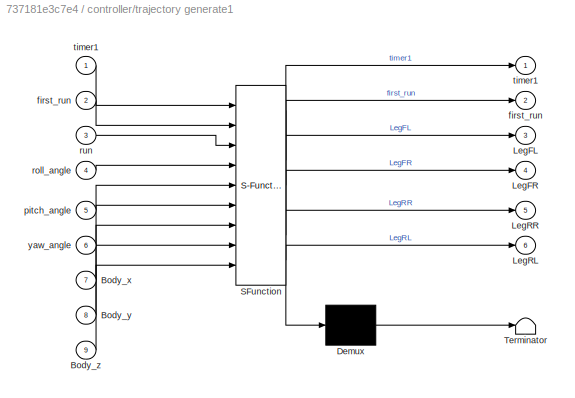
BLOCK [SubSystem] controller/trajectory generate1
  ErrorFcn = Stateflow.Translate.translate
  PermitHierarchicalResolution = ExplicitOnly
  Ports = [9, 6]
  RequestExecContextInheritance = off
  SFBlockType = MATLAB Function
  TreatAsAtomicUnit = on
BLOCK [Demux] controller/trajectory generate1/ Demux 
  Outputs = 1
  Ports = [1, 1]
BLOCK [S-Function] controller/trajectory generate1/ SFunction 
  EnableBusSupport = on
  FunctionName = sf_sfun
  PortCounts = [9 7]
  Ports = [9, 7]
  SFcnIsStateOwnerBlock = off
  SFunctionDeploymentMode = off
  Tag = Stateflow S-Function ForceControl_Quadruped_vmc 4
BLOCK [Terminator] controller/trajectory generate1/ Terminator 
BLOCK [Inport] controller/trajectory generate1/Body_x
  IconDisplay = Port number
  Port = 7
BLOCK [Inport] controller/trajectory generate1/Body_y
  IconDisplay = Port number
  Port = 8
BLOCK [Inport] controller/trajectory generate1/Body_z
  IconDisplay = Port number
  Port = 9
BLOCK [Outport] controller/trajectory generate1/LegFL
  IconDisplay = Port number
  Port = 3
BLOCK [Outport] controller/trajectory generate1/LegFR
  IconDisplay = Port number
  Port = 4
BLOCK [Outport] controller/trajectory generate1/LegRL
  IconDisplay = Port number
  Port = 6
BLOCK [Outport] controller/trajectory generate1/LegRR
  IconDisplay = Port number
  Port = 5
BLOCK [Outport] controller/trajectory generate1/first_run
  IconDisplay = Port number
  Port = 2
BLOCK [Inport] controller/trajectory generate1/first_run 
  IconDisplay = Port number
  Port = 2
BLOCK [Inport] controller/trajectory generate1/pitch_angle
  IconDisplay = Port number
  Port = 5
BLOCK [Inport] controller/trajectory generate1/roll_angle
  IconDisplay = Port number
  Port = 4
BLOCK [Inport] controller/trajectory generate1/run
  IconDisplay = Port number
  Port = 3
BLOCK [Outport] controller/trajectory generate1/timer1
  IconDisplay = Port number
BLOCK [Inport] controller/trajectory generate1/timer1 
  IconDisplay = Port number
BLOCK [Inport] controller/trajectory generate1/yaw_angle
  IconDisplay = Port number
  Port = 6
BLOCK [SubSystem] controller1
  Ports = [3, 4]
  RequestExecContextInheritance = off
BLOCK [Clock] controller1/Clock
BLOCK [Constant] controller1/Constant
  Value = 0
BLOCK [Constant] controller1/Constant1
  Value = 0
BLOCK [Constant] controller1/Constant2
  Value = 0.6
BLOCK [Demux] controller1/Demux
  DisplayOption = bar
  Outputs = 3
  Ports = [1, 3]
BLOCK [Demux] controller1/Demux1
  DisplayOption = bar
  Outputs = 12
  Ports = [1, 12]
BLOCK [Gain] controller1/Gain
  Gain = -1
  OutDataTypeStr = Inherit: Inherit via internal rule
  ParamDataTypeStr = Inherit: Inherit via internal rule
  SaturateOnIntegerOverflow = off
BLOCK [Gain] controller1/Gain1
  Gain = 100
  OutDataTypeStr = Inherit: Inherit via internal rule
  ParamDataTypeStr = Inherit: Inherit via internal rule
  SaturateOnIntegerOverflow = off
BLOCK [Gain] controller1/Gain2
  Gain = 50
  OutDataTypeStr = Inherit: Inherit via internal rule
  ParamDataTypeStr = Inherit: Inherit via internal rule
  SaturateOnIntegerOverflow = off
BLOCK [Gain] controller1/Gain3
  Gain = 30
  OutDataTypeStr = Inherit: Inherit via internal rule
  ParamDataTypeStr = Inherit: Inherit via internal rule
  SaturateOnIntegerOverflow = off
BLOCK [SubSystem] controller1/MATLAB Function
  ErrorFcn = Stateflow.Translate.translate
  PermitHierarchicalResolution = ExplicitOnly
  Ports = [1, 3]
  RequestExecContextInheritance = off
  SFBlockType = MATLAB Function
  TreatAsAtomicUnit = on
BLOCK [Demux] controller1/MATLAB Function/ Demux 
  Outputs = 1
  Ports = [1, 1]
BLOCK [S-Function] controller1/MATLAB Function/ SFunction 
  EnableBusSupport = on
  FunctionName = sf_sfun
  PortCounts = [1 4]
  Ports = [1, 4]
  SFcnIsStateOwnerBlock = off
  SFunctionDeploymentMode = off
  Tag = Stateflow S-Function ForceControl_Quadruped_vmc 18
BLOCK [Terminator] controller1/MATLAB Function/ Terminator 
BLOCK [Inport] controller1/MATLAB Function/t
  IconDisplay = Port number
BLOCK [Outport] controller1/MATLAB Function/theta_t
  IconDisplay = Port number
BLOCK [Outport] controller1/MATLAB Function/theta_t_d
  IconDisplay = Port number
  Port = 2
BLOCK [Outport] controller1/MATLAB Function/theta_t_d2
  IconDisplay = Port number
  Port = 3
BLOCK [SubSystem] controller1/MATLAB Function1
  ErrorFcn = Stateflow.Translate.translate
  PermitHierarchicalResolution = ExplicitOnly
  Ports = [5, 1]
  RequestExecContextInheritance = off
  SFBlockType = MATLAB Function
  TreatAsAtomicUnit = on
BLOCK [Demux] controller1/MATLAB Function1/ Demux 
  Outputs = 1
  Ports = [1, 1]
BLOCK [S-Function] controller1/MATLAB Function1/ SFunction 
  EnableBusSupport = on
  FunctionName = sf_sfun
  PortCounts = [5 2]
  Ports = [5, 2]
  SFcnIsStateOwnerBlock = off
  SFunctionDeploymentMode = off
  Tag = Stateflow S-Function ForceControl_Quadruped_vmc 19
BLOCK [Terminator] controller1/MATLAB Function1/ Terminator 
BLOCK [Inport] controller1/MATLAB Function1/q
  IconDisplay = Port number
  Port = 3
BLOCK [Inport] controller1/MATLAB Function1/q_d
  IconDisplay = Port number
  Port = 4
BLOCK [Inport] controller1/MATLAB Function1/q_d2
  IconDisplay = Port number
  Port = 5
BLOCK [Outport] controller1/MATLAB Function1/tau
  IconDisplay = Port number
BLOCK [Inport] controller1/MATLAB Function1/theta
  IconDisplay = Port number
BLOCK [Inport] controller1/MATLAB Function1/theta_d
  IconDisplay = Port number
  Port = 2
BLOCK [SubSystem] controller1/MATLAB Function4
  ErrorFcn = Stateflow.Translate.translate
  PermitHierarchicalResolution = ExplicitOnly
  Ports = [1, 1]
  RequestExecContextInheritance = off
  SFBlockType = MATLAB Function
  TreatAsAtomicUnit = on
BLOCK [Demux] controller1/MATLAB Function4/ Demux 
  Outputs = 1
  Ports = [1, 1]
BLOCK [S-Function] controller1/MATLAB Function4/ SFunction 
  EnableBusSupport = on
  FunctionName = sf_sfun
  PortCounts = [1 2]
  Ports = [1, 2]
  SFcnIsStateOwnerBlock = off
  SFunctionDeploymentMode = off
  Tag = Stateflow S-Function ForceControl_Quadruped_vmc 22
BLOCK [Terminator] controller1/MATLAB Function4/ Terminator 
BLOCK [Outport] controller1/MATLAB Function4/J
  IconDisplay = Port number
BLOCK [Inport] controller1/MATLAB Function4/theta
  IconDisplay = Port number
BLOCK [Product] controller1/Matrix Multiply
  InputSameDT = off
  Multiplication = Matrix(*)
  OutDataTypeStr = Inherit: Inherit via internal rule
  Ports = [2, 1]
  RndMeth = Floor
  SaturateOnIntegerOverflow = off
BLOCK [Mux] controller1/Mux1
  DisplayOption = bar
  Inputs = 6
  Ports = [6, 1]
BLOCK [Mux] controller1/Mux10
  DisplayOption = bar
  Inputs = 3
  Ports = [3, 1]
BLOCK [Mux] controller1/Mux11
  DisplayOption = bar
  Inputs = 3
  Ports = [3, 1]
BLOCK [Mux] controller1/Mux2
  DisplayOption = bar
  Inputs = 6
  Ports = [6, 1]
BLOCK [Mux] controller1/Mux8
  DisplayOption = bar
  Inputs = 3
  Ports = [3, 1]
BLOCK [Mux] controller1/Mux9
  DisplayOption = bar
  Inputs = 3
  Ports = [3, 1]
BLOCK [Outport] controller1/Out1
  IconDisplay = Port number
BLOCK [Outport] controller1/Out2
  IconDisplay = Port number
  Port = 2
BLOCK [Outport] controller1/Out3
  IconDisplay = Port number
  Port = 3
BLOCK [Outport] controller1/Out4
  IconDisplay = Port number
  Port = 4
BLOCK [Scope] controller1/Scope
  Floating = off
  NumInputPorts = 1
  Ports = [1]
  ScopeSpecificationString = Simulink.scopes.TimeScopeBlockCfg('CurrentConfiguration', extmgr.ConfigurationSet(extmgr.Configuration('Core','General UI',true),extmgr.Configuration('Core','Source UI',true),extmgr.Configuration('Sources','WiredSimulink',true),extmgr.Configuration('Visuals','Time Domain',true,'SerializedDisplays',{struct('MinYLimReal','-0.1125','MaxYLimReal','1.0125','YLabelReal','','MinYLimMag','0.00000','MaxYLi...<+1496ch>
BLOCK [Sum] controller1/Sum
  IconShape = round
  InputSameDT = off
  Inputs = |+-
  OutDataTypeStr = Inherit: Inherit via internal rule
  Ports = [2, 1]
  SaturateOnIntegerOverflow = off
BLOCK [Sum] controller1/Sum1
  IconShape = round
  InputSameDT = off
  Inputs = |+-
  OutDataTypeStr = Inherit: Inherit via internal rule
  Ports = [2, 1]
  SaturateOnIntegerOverflow = off
BLOCK [Sum] controller1/Sum2
  IconShape = round
  InputSameDT = off
  Inputs = |+-
  OutDataTypeStr = Inherit: Inherit via internal rule
  Ports = [2, 1]
  SaturateOnIntegerOverflow = off
BLOCK [Inport] controller1/body_xyz
  IconDisplay = Port number
  Port = 3
BLOCK [Inport] controller1/theta
  IconDisplay = Port number
BLOCK [Inport] controller1/theta_d
  IconDisplay = Port number
  Port = 2
BLOCK [SubSystem] world
  Ports = [0, 0, 0, 0, 0, 0, 1]
  RequestExecContextInheritance = off
BLOCK [Reference] world/Mechanism Configuration  REF=sm_lib/Utilities/Mechanism
Configuration
  Ports = [0, 0, 0, 0, 0, 0, 1]
  SourceBlock = sm_lib/Utilities/Mechanism\nConfiguration
  SourceProductBaseCode = MS
  SourceProductName = Simscape Multibody
  SourceType = Mechanism\nConfiguration
BLOCK [Reference] world/Solver Configuration  REF=nesl_utility/Solver
Configuration
  Ports = [0, 0, 0, 0, 0, 0, 1]
  SourceBlock = nesl_utility/Solver\nConfiguration
  SourceProductBaseCode = SS
  SourceProductName = Simscape
  SourceType = Solver\nConfiguration
BLOCK [Reference] world/World Frame  REF=sm_lib/Frames and
Transforms/World Frame
  Ports = [0, 0, 0, 0, 0, 0, 1]
  SourceBlock = sm_lib/Frames and\nTransforms/World Frame
  SourceProductBaseCode = MS
  SourceProductName = Simscape Multibody
  SourceType = World Frame
BLOCK [Reference] world/floor  REF=sm_lib/Body Elements/Solid
  Ports = [0, 0, 0, 0, 0, 0, 1]
  SourceBlock = sm_lib/Body Elements/Solid
  SourceProductBaseCode = MS
  SourceProductName = Simscape Multibody
  SourceType = Solid
BLOCK [PMIOPort] world/to_body
  Side = Right
LINE FL/Demux1:1 -> FL/Subsystem:2
LINE FL/Demux1:2 -> FL/Subsystem2:2
LINE FL/Demux1:3 -> FL/Subsystem3:2
NET FL/Demux3:1 -> FL/Mux1:2, FL/Sum:2
NET FL/Demux3:2 -> FL/Mux2:2, FL/Sum1:2
NET FL/Demux3:3 -> FL/Mux3:2, FL/Sum2:2
LINE FL/Demux:1 -> FL/Subsystem:1
LINE FL/Demux:2 -> FL/Subsystem2:1
LINE FL/Demux:3 -> FL/Subsystem3:1
LINE FL/From1:1 -> FL/Demux1:1
LINE FL/From2:1 -> FL/MATLAB Function:4
LINE FL/From3:1 -> FL/Subsystem1:1
LINE FL/From:1 -> FL/Demux:1
NET FL/MATLAB Function1:1 -> FL/Goto:1, FL/MATLAB Function2:1
LINE FL/MATLAB Function2:1 -> FL/Goto1:1
LINE FL/MATLAB Function2:2 -> FL/Memory1:1
LINE FL/MATLAB Function2:3 -> FL/Memory2:1
LINE FL/MATLAB Function:1 -> FL/Mux:1
LINE FL/MATLAB Function:2 -> FL/Mux:2
LINE FL/MATLAB Function:3 -> FL/Mux:3
LINE FL/Memory1:1 -> FL/MATLAB Function2:2
LINE FL/Memory2:1 -> FL/MATLAB Function2:3
LINE FL/Mux1:1 -> FL/Scope:1
LINE FL/Mux2:1 -> FL/Scope:2
LINE FL/Mux3:1 -> FL/Scope:3
NET FL/Mux:1 -> FL/Goto3:1, FL/Scope1:1
LINE FL/Subsystem/Constant1:1 -> FL/Subsystem/Sum1:1
LINE FL/Subsystem/Constant:1 -> FL/Subsystem/Sum:1
LINE FL/Subsystem/Gain1:1 -> FL/Subsystem/Sum2:2
LINE FL/Subsystem/Gain:1 -> FL/Subsystem/Sum2:1
LINE FL/Subsystem/Sum1:1 -> FL/Subsystem/Gain1:1
LINE FL/Subsystem/Sum2:1 -> FL/Subsystem/f:1
LINE FL/Subsystem/Sum:1 -> FL/Subsystem/Gain:1
LINE FL/Subsystem/p:1 -> FL/Subsystem/Sum:2
LINE FL/Subsystem/v:1 -> FL/Subsystem/Sum1:2
LINE FL/Subsystem1/Demux:1 -> FL/Subsystem1/Simulink-PS Converter2:1
LINE FL/Subsystem1/Demux:2 -> FL/Subsystem1/Simulink-PS Converter:1
LINE FL/Subsystem1/Demux:3 -> FL/Subsystem1/Simulink-PS Converter1:1
LINE FL/Subsystem1/Mux:1 -> FL/Subsystem1/q:1
LINE FL/Subsystem1/q0:1 -> FL/Subsystem1/Mux:1
LINE FL/Subsystem1/q1:1 -> FL/Subsystem1/Mux:2
LINE FL/Subsystem1/q2:1 -> FL/Subsystem1/Mux:3
LINE FL/Subsystem1/tau:1 -> FL/Subsystem1/Demux:1
NET FL/Subsystem1:1 -> FL/Goto2:1, FL/MATLAB Function1:1
LINE FL/Subsystem2/Constant1:1 -> FL/Subsystem2/Sum1:1
LINE FL/Subsystem2/Constant:1 -> FL/Subsystem2/Sum:1
LINE FL/Subsystem2/Gain1:1 -> FL/Subsystem2/Sum2:2
LINE FL/Subsystem2/Gain:1 -> FL/Subsystem2/Sum2:1
LINE FL/Subsystem2/Sum1:1 -> FL/Subsystem2/Gain1:1
LINE FL/Subsystem2/Sum2:1 -> FL/Subsystem2/f:1
LINE FL/Subsystem2/Sum:1 -> FL/Subsystem2/Gain:1
LINE FL/Subsystem2/p:1 -> FL/Subsystem2/Sum:2
LINE FL/Subsystem2/v:1 -> FL/Subsystem2/Sum1:2
NET FL/Subsystem2:1 -> FL/Mux2:1, FL/Sum1:1
LINE FL/Subsystem3/Constant1:1 -> FL/Subsystem3/Sum1:1
LINE FL/Subsystem3/Constant:1 -> FL/Subsystem3/Sum:1
LINE FL/Subsystem3/Gain1:1 -> FL/Subsystem3/Sum2:2
LINE FL/Subsystem3/Gain:1 -> FL/Subsystem3/Sum2:1
LINE FL/Subsystem3/Sum1:1 -> FL/Subsystem3/Gain1:1
LINE FL/Subsystem3/Sum2:1 -> FL/Subsystem3/f:1
LINE FL/Subsystem3/Sum:1 -> FL/Subsystem3/Gain:1
LINE FL/Subsystem3/p:1 -> FL/Subsystem3/Sum:2
LINE FL/Subsystem3/v:1 -> FL/Subsystem3/Sum1:2
NET FL/Subsystem3:1 -> FL/Mux3:1, FL/Sum2:1
NET FL/Subsystem:1 -> FL/Mux1:1, FL/Sum:1
NET FL/Sum1:1 -> FL/MATLAB Function:2, FL/Mux2:3
NET FL/Sum2:1 -> FL/MATLAB Function:3, FL/Mux3:3
NET FL/Sum:1 -> FL/MATLAB Function:1, FL/Mux1:3
LINE FL/f:1 -> FL/Demux3:1
LINE FL1/Demux1:1 -> FL1/Subsystem:2
LINE FL1/Demux1:2 -> FL1/Subsystem2:2
LINE FL1/Demux1:3 -> FL1/Subsystem3:2
NET FL1/Demux3:1 -> FL1/Mux1:2, FL1/Sum:2
NET FL1/Demux3:2 -> FL1/Mux2:2, FL1/Sum1:2
NET FL1/Demux3:3 -> FL1/Mux3:2, FL1/Sum2:2
LINE FL1/Demux:1 -> FL1/Subsystem:1
LINE FL1/Demux:2 -> FL1/Subsystem2:1
LINE FL1/Demux:3 -> FL1/Subsystem3:1
LINE FL1/From1:1 -> FL1/Demux1:1
LINE FL1/From2:1 -> FL1/MATLAB Function:4
LINE FL1/From3:1 -> FL1/Subsystem1:1
LINE FL1/From:1 -> FL1/Demux:1
NET FL1/MATLAB Function1:1 -> FL1/Goto:1, FL1/MATLAB Function2:1
LINE FL1/MATLAB Function2:1 -> FL1/Goto1:1
LINE FL1/MATLAB Function2:2 -> FL1/Memory1:1
LINE FL1/MATLAB Function2:3 -> FL1/Memory2:1
LINE FL1/MATLAB Function:1 -> FL1/Mux:1
LINE FL1/MATLAB Function:2 -> FL1/Mux:2
LINE FL1/MATLAB Function:3 -> FL1/Mux:3
LINE FL1/Memory1:1 -> FL1/MATLAB Function2:2
LINE FL1/Memory2:1 -> FL1/MATLAB Function2:3
LINE FL1/Mux1:1 -> FL1/Scope:1
LINE FL1/Mux2:1 -> FL1/Scope:2
LINE FL1/Mux3:1 -> FL1/Scope:3
NET FL1/Mux:1 -> FL1/Goto3:1, FL1/Scope1:1
LINE FL1/Subsystem/Constant1:1 -> FL1/Subsystem/Sum1:1
LINE FL1/Subsystem/Constant:1 -> FL1/Subsystem/Sum:1
LINE FL1/Subsystem/Gain1:1 -> FL1/Subsystem/Sum2:2
LINE FL1/Subsystem/Gain:1 -> FL1/Subsystem/Sum2:1
LINE FL1/Subsystem/Sum1:1 -> FL1/Subsystem/Gain1:1
LINE FL1/Subsystem/Sum2:1 -> FL1/Subsystem/f:1
LINE FL1/Subsystem/Sum:1 -> FL1/Subsystem/Gain:1
LINE FL1/Subsystem/p:1 -> FL1/Subsystem/Sum:2
LINE FL1/Subsystem/v:1 -> FL1/Subsystem/Sum1:2
LINE FL1/Subsystem1/Demux:1 -> FL1/Subsystem1/Simulink-PS Converter2:1
LINE FL1/Subsystem1/Demux:2 -> FL1/Subsystem1/Simulink-PS Converter:1
LINE FL1/Subsystem1/Demux:3 -> FL1/Subsystem1/Simulink-PS Converter1:1
LINE FL1/Subsystem1/Mux:1 -> FL1/Subsystem1/q:1
LINE FL1/Subsystem1/q0:1 -> FL1/Subsystem1/Mux:1
LINE FL1/Subsystem1/q1:1 -> FL1/Subsystem1/Mux:2
LINE FL1/Subsystem1/q2:1 -> FL1/Subsystem1/Mux:3
LINE FL1/Subsystem1/tau:1 -> FL1/Subsystem1/Demux:1
NET FL1/Subsystem1:1 -> FL1/Goto2:1, FL1/MATLAB Function1:1
LINE FL1/Subsystem2/Constant1:1 -> FL1/Subsystem2/Sum1:1
LINE FL1/Subsystem2/Constant:1 -> FL1/Subsystem2/Sum:1
LINE FL1/Subsystem2/Gain1:1 -> FL1/Subsystem2/Sum2:2
LINE FL1/Subsystem2/Gain:1 -> FL1/Subsystem2/Sum2:1
LINE FL1/Subsystem2/Sum1:1 -> FL1/Subsystem2/Gain1:1
LINE FL1/Subsystem2/Sum2:1 -> FL1/Subsystem2/f:1
LINE FL1/Subsystem2/Sum:1 -> FL1/Subsystem2/Gain:1
LINE FL1/Subsystem2/p:1 -> FL1/Subsystem2/Sum:2
LINE FL1/Subsystem2/v:1 -> FL1/Subsystem2/Sum1:2
NET FL1/Subsystem2:1 -> FL1/Mux2:1, FL1/Sum1:1
LINE FL1/Subsystem3/Constant1:1 -> FL1/Subsystem3/Sum1:1
LINE FL1/Subsystem3/Constant:1 -> FL1/Subsystem3/Sum:1
LINE FL1/Subsystem3/Gain1:1 -> FL1/Subsystem3/Sum2:2
LINE FL1/Subsystem3/Gain:1 -> FL1/Subsystem3/Sum2:1
LINE FL1/Subsystem3/Sum1:1 -> FL1/Subsystem3/Gain1:1
LINE FL1/Subsystem3/Sum2:1 -> FL1/Subsystem3/f:1
LINE FL1/Subsystem3/Sum:1 -> FL1/Subsystem3/Gain:1
LINE FL1/Subsystem3/p:1 -> FL1/Subsystem3/Sum:2
LINE FL1/Subsystem3/v:1 -> FL1/Subsystem3/Sum1:2
NET FL1/Subsystem3:1 -> FL1/Mux3:1, FL1/Sum2:1
NET FL1/Subsystem:1 -> FL1/Mux1:1, FL1/Sum:1
NET FL1/Sum1:1 -> FL1/MATLAB Function:2, FL1/Mux2:3
NET FL1/Sum2:1 -> FL1/MATLAB Function:3, FL1/Mux3:3
NET FL1/Sum:1 -> FL1/MATLAB Function:1, FL1/Mux1:3
LINE FL1/f:1 -> FL1/Demux3:1
LINE FL2/Demux1:1 -> FL2/Subsystem:2
LINE FL2/Demux1:2 -> FL2/Subsystem2:2
LINE FL2/Demux1:3 -> FL2/Subsystem3:2
NET FL2/Demux3:1 -> FL2/Mux1:2, FL2/Sum:2
NET FL2/Demux3:2 -> FL2/Mux2:2, FL2/Sum1:2
NET FL2/Demux3:3 -> FL2/Mux3:2, FL2/Sum2:2
LINE FL2/Demux:1 -> FL2/Subsystem:1
LINE FL2/Demux:2 -> FL2/Subsystem2:1
LINE FL2/Demux:3 -> FL2/Subsystem3:1
LINE FL2/From1:1 -> FL2/Demux1:1
LINE FL2/From2:1 -> FL2/MATLAB Function:4
LINE FL2/From3:1 -> FL2/Subsystem1:1
LINE FL2/From:1 -> FL2/Demux:1
NET FL2/MATLAB Function1:1 -> FL2/Goto:1, FL2/MATLAB Function2:1
LINE FL2/MATLAB Function2:1 -> FL2/Goto1:1
LINE FL2/MATLAB Function2:2 -> FL2/Memory1:1
LINE FL2/MATLAB Function2:3 -> FL2/Memory2:1
LINE FL2/MATLAB Function:1 -> FL2/Mux:1
LINE FL2/MATLAB Function:2 -> FL2/Mux:2
LINE FL2/MATLAB Function:3 -> FL2/Mux:3
LINE FL2/Memory1:1 -> FL2/MATLAB Function2:2
LINE FL2/Memory2:1 -> FL2/MATLAB Function2:3
LINE FL2/Mux1:1 -> FL2/Scope:1
LINE FL2/Mux2:1 -> FL2/Scope:2
LINE FL2/Mux3:1 -> FL2/Scope:3
NET FL2/Mux:1 -> FL2/Goto3:1, FL2/Scope1:1
LINE FL2/Subsystem/Constant1:1 -> FL2/Subsystem/Sum1:1
LINE FL2/Subsystem/Constant:1 -> FL2/Subsystem/Sum:1
LINE FL2/Subsystem/Gain1:1 -> FL2/Subsystem/Sum2:2
LINE FL2/Subsystem/Gain:1 -> FL2/Subsystem/Sum2:1
LINE FL2/Subsystem/Sum1:1 -> FL2/Subsystem/Gain1:1
LINE FL2/Subsystem/Sum2:1 -> FL2/Subsystem/f:1
LINE FL2/Subsystem/Sum:1 -> FL2/Subsystem/Gain:1
LINE FL2/Subsystem/p:1 -> FL2/Subsystem/Sum:2
LINE FL2/Subsystem/v:1 -> FL2/Subsystem/Sum1:2
LINE FL2/Subsystem1/Demux:1 -> FL2/Subsystem1/Simulink-PS Converter2:1
LINE FL2/Subsystem1/Demux:2 -> FL2/Subsystem1/Simulink-PS Converter:1
LINE FL2/Subsystem1/Demux:3 -> FL2/Subsystem1/Simulink-PS Converter1:1
LINE FL2/Subsystem1/Mux:1 -> FL2/Subsystem1/q:1
LINE FL2/Subsystem1/q0:1 -> FL2/Subsystem1/Mux:1
LINE FL2/Subsystem1/q1:1 -> FL2/Subsystem1/Mux:2
LINE FL2/Subsystem1/q2:1 -> FL2/Subsystem1/Mux:3
LINE FL2/Subsystem1/tau:1 -> FL2/Subsystem1/Demux:1
NET FL2/Subsystem1:1 -> FL2/Goto2:1, FL2/MATLAB Function1:1
LINE FL2/Subsystem2/Constant1:1 -> FL2/Subsystem2/Sum1:1
LINE FL2/Subsystem2/Constant:1 -> FL2/Subsystem2/Sum:1
LINE FL2/Subsystem2/Gain1:1 -> FL2/Subsystem2/Sum2:2
LINE FL2/Subsystem2/Gain:1 -> FL2/Subsystem2/Sum2:1
LINE FL2/Subsystem2/Sum1:1 -> FL2/Subsystem2/Gain1:1
LINE FL2/Subsystem2/Sum2:1 -> FL2/Subsystem2/f:1
LINE FL2/Subsystem2/Sum:1 -> FL2/Subsystem2/Gain:1
LINE FL2/Subsystem2/p:1 -> FL2/Subsystem2/Sum:2
LINE FL2/Subsystem2/v:1 -> FL2/Subsystem2/Sum1:2
NET FL2/Subsystem2:1 -> FL2/Mux2:1, FL2/Sum1:1
LINE FL2/Subsystem3/Constant1:1 -> FL2/Subsystem3/Sum1:1
LINE FL2/Subsystem3/Constant:1 -> FL2/Subsystem3/Sum:1
LINE FL2/Subsystem3/Gain1:1 -> FL2/Subsystem3/Sum2:2
LINE FL2/Subsystem3/Gain:1 -> FL2/Subsystem3/Sum2:1
LINE FL2/Subsystem3/Sum1:1 -> FL2/Subsystem3/Gain1:1
LINE FL2/Subsystem3/Sum2:1 -> FL2/Subsystem3/f:1
LINE FL2/Subsystem3/Sum:1 -> FL2/Subsystem3/Gain:1
LINE FL2/Subsystem3/p:1 -> FL2/Subsystem3/Sum:2
LINE FL2/Subsystem3/v:1 -> FL2/Subsystem3/Sum1:2
NET FL2/Subsystem3:1 -> FL2/Mux3:1, FL2/Sum2:1
NET FL2/Subsystem:1 -> FL2/Mux1:1, FL2/Sum:1
NET FL2/Sum1:1 -> FL2/MATLAB Function:2, FL2/Mux2:3
NET FL2/Sum2:1 -> FL2/MATLAB Function:3, FL2/Mux3:3
NET FL2/Sum:1 -> FL2/MATLAB Function:1, FL2/Mux1:3
LINE FL2/f:1 -> FL2/Demux3:1
LINE FL3/Demux1:1 -> FL3/Subsystem:2
LINE FL3/Demux1:2 -> FL3/Subsystem2:2
LINE FL3/Demux1:3 -> FL3/Subsystem3:2
NET FL3/Demux3:1 -> FL3/Mux1:2, FL3/Sum:2
NET FL3/Demux3:2 -> FL3/Mux2:2, FL3/Sum1:2
NET FL3/Demux3:3 -> FL3/Mux3:2, FL3/Sum2:2
LINE FL3/Demux:1 -> FL3/Subsystem:1
LINE FL3/Demux:2 -> FL3/Subsystem2:1
LINE FL3/Demux:3 -> FL3/Subsystem3:1
LINE FL3/From1:1 -> FL3/Demux1:1
LINE FL3/From2:1 -> FL3/MATLAB Function:4
LINE FL3/From3:1 -> FL3/Subsystem1:1
LINE FL3/From:1 -> FL3/Demux:1
NET FL3/MATLAB Function1:1 -> FL3/Goto:1, FL3/MATLAB Function2:1
LINE FL3/MATLAB Function2:1 -> FL3/Goto1:1
LINE FL3/MATLAB Function2:2 -> FL3/Memory1:1
LINE FL3/MATLAB Function2:3 -> FL3/Memory2:1
LINE FL3/MATLAB Function:1 -> FL3/Mux:1
LINE FL3/MATLAB Function:2 -> FL3/Mux:2
LINE FL3/MATLAB Function:3 -> FL3/Mux:3
LINE FL3/Memory1:1 -> FL3/MATLAB Function2:2
LINE FL3/Memory2:1 -> FL3/MATLAB Function2:3
LINE FL3/Mux1:1 -> FL3/Scope:1
LINE FL3/Mux2:1 -> FL3/Scope:2
LINE FL3/Mux3:1 -> FL3/Scope:3
NET FL3/Mux:1 -> FL3/Goto3:1, FL3/Scope1:1
LINE FL3/Subsystem/Constant1:1 -> FL3/Subsystem/Sum1:1
LINE FL3/Subsystem/Constant:1 -> FL3/Subsystem/Sum:1
LINE FL3/Subsystem/Gain1:1 -> FL3/Subsystem/Sum2:2
LINE FL3/Subsystem/Gain:1 -> FL3/Subsystem/Sum2:1
LINE FL3/Subsystem/Sum1:1 -> FL3/Subsystem/Gain1:1
LINE FL3/Subsystem/Sum2:1 -> FL3/Subsystem/f:1
LINE FL3/Subsystem/Sum:1 -> FL3/Subsystem/Gain:1
LINE FL3/Subsystem/p:1 -> FL3/Subsystem/Sum:2
LINE FL3/Subsystem/v:1 -> FL3/Subsystem/Sum1:2
LINE FL3/Subsystem1/Demux:1 -> FL3/Subsystem1/Simulink-PS Converter2:1
LINE FL3/Subsystem1/Demux:2 -> FL3/Subsystem1/Simulink-PS Converter:1
LINE FL3/Subsystem1/Demux:3 -> FL3/Subsystem1/Simulink-PS Converter1:1
LINE FL3/Subsystem1/Mux:1 -> FL3/Subsystem1/q:1
LINE FL3/Subsystem1/q0:1 -> FL3/Subsystem1/Mux:1
LINE FL3/Subsystem1/q1:1 -> FL3/Subsystem1/Mux:2
LINE FL3/Subsystem1/q2:1 -> FL3/Subsystem1/Mux:3
LINE FL3/Subsystem1/tau:1 -> FL3/Subsystem1/Demux:1
NET FL3/Subsystem1:1 -> FL3/Goto2:1, FL3/MATLAB Function1:1
LINE FL3/Subsystem2/Constant1:1 -> FL3/Subsystem2/Sum1:1
LINE FL3/Subsystem2/Constant:1 -> FL3/Subsystem2/Sum:1
LINE FL3/Subsystem2/Gain1:1 -> FL3/Subsystem2/Sum2:2
LINE FL3/Subsystem2/Gain:1 -> FL3/Subsystem2/Sum2:1
LINE FL3/Subsystem2/Sum1:1 -> FL3/Subsystem2/Gain1:1
LINE FL3/Subsystem2/Sum2:1 -> FL3/Subsystem2/f:1
LINE FL3/Subsystem2/Sum:1 -> FL3/Subsystem2/Gain:1
LINE FL3/Subsystem2/p:1 -> FL3/Subsystem2/Sum:2
LINE FL3/Subsystem2/v:1 -> FL3/Subsystem2/Sum1:2
NET FL3/Subsystem2:1 -> FL3/Mux2:1, FL3/Sum1:1
LINE FL3/Subsystem3/Constant1:1 -> FL3/Subsystem3/Sum1:1
LINE FL3/Subsystem3/Constant:1 -> FL3/Subsystem3/Sum:1
LINE FL3/Subsystem3/Gain1:1 -> FL3/Subsystem3/Sum2:2
LINE FL3/Subsystem3/Gain:1 -> FL3/Subsystem3/Sum2:1
LINE FL3/Subsystem3/Sum1:1 -> FL3/Subsystem3/Gain1:1
LINE FL3/Subsystem3/Sum2:1 -> FL3/Subsystem3/f:1
LINE FL3/Subsystem3/Sum:1 -> FL3/Subsystem3/Gain:1
LINE FL3/Subsystem3/p:1 -> FL3/Subsystem3/Sum:2
LINE FL3/Subsystem3/v:1 -> FL3/Subsystem3/Sum1:2
NET FL3/Subsystem3:1 -> FL3/Mux3:1, FL3/Sum2:1
NET FL3/Subsystem:1 -> FL3/Mux1:1, FL3/Sum:1
NET FL3/Sum1:1 -> FL3/MATLAB Function:2, FL3/Mux2:3
NET FL3/Sum2:1 -> FL3/MATLAB Function:3, FL3/Mux3:3
NET FL3/Sum:1 -> FL3/MATLAB Function:1, FL3/Mux1:3
LINE FL3/f:1 -> FL3/Demux3:1
LINE body/MATLAB Function3:1 -> body/Mux:1
LINE body/MATLAB Function3:2 -> body/Mux:2
LINE body/MATLAB Function3:3 -> body/Mux:3
LINE body/Mux1:1 -> body/attitude_d:1
LINE body/Mux2:1 -> body/body_pos:1
LINE body/Mux:1 -> body/attitude:1
LINE body/PS-Simulink Converter1:1 -> body/Mux1:1
LINE body/PS-Simulink Converter2:1 -> body/MATLAB Function3:1
LINE body/PS-Simulink Converter3:1 -> body/Mux1:2
LINE body/PS-Simulink Converter4:1 -> body/Mux1:3
LINE body/PS-Simulink Converter5:1 -> body/Mux2:1
LINE body/PS-Simulink Converter6:1 -> body/Mux2:2
LINE body/PS-Simulink Converter7:1 -> body/Mux2:3
LINE body:1 -> controller1:1
LINE body:2 -> controller1:2
LINE body:3 -> controller1:3
LINE controller/Clock:1 -> controller/Switch:2
LINE controller/Constant1:1 -> controller/Switch:3
NET controller/Constant3:1 -> controller/trajectory generate1:4, controller/trajectory generate1:5, controller/trajectory generate1:6, controller/trajectory generate1:7, controller/trajectory generate1:8, controller/trajectory generate1:9
LINE controller/Constant:1 -> controller/Switch:1
LINE controller/Demux1:1 -> controller/inverse kinematics1:1
LINE controller/Demux1:2 -> controller/inverse kinematics1:2
LINE controller/Demux1:3 -> controller/inverse kinematics1:3
LINE controller/Demux2:1 -> controller/inverse kinematics3:1
LINE controller/Demux2:2 -> controller/inverse kinematics3:2
LINE controller/Demux2:3 -> controller/inverse kinematics3:3
LINE controller/Demux3:1 -> controller/inverse kinematics4:1
LINE controller/Demux3:2 -> controller/inverse kinematics4:2
LINE controller/Demux3:3 -> controller/inverse kinematics4:3
LINE controller/Demux:1 -> controller/inverse kinematics2:1
LINE controller/Demux:2 -> controller/inverse kinematics2:2
LINE controller/Demux:3 -> controller/inverse kinematics2:3
LINE controller/Memory1:1 -> controller/trajectory generate1:2
LINE controller/Memory:1 -> controller/trajectory generate1:1
LINE controller/Switch:1 -> controller/trajectory generate1:3
LINE controller/inverse kinematics1:1 -> controller/Mux1:1
LINE controller/inverse kinematics1:2 -> controller/Mux1:2
LINE controller/inverse kinematics1:3 -> controller/Mux1:3
LINE controller/inverse kinematics2:1 -> controller/Mux:1
LINE controller/inverse kinematics2:2 -> controller/Mux:2
LINE controller/inverse kinematics2:3 -> controller/Mux:3
LINE controller/inverse kinematics3:1 -> controller/Mux2:1
LINE controller/inverse kinematics3:2 -> controller/Mux2:2
LINE controller/inverse kinematics3:3 -> controller/Mux2:3
LINE controller/inverse kinematics4:1 -> controller/Mux3:1
LINE controller/inverse kinematics4:2 -> controller/Mux3:2
LINE controller/inverse kinematics4:3 -> controller/Mux3:3
LINE controller/trajectory generate1:1 -> controller/Memory:1
LINE controller/trajectory generate1:2 -> controller/Memory1:1
LINE controller/trajectory generate1:3 -> controller/FL:1
LINE controller/trajectory generate1:4 -> controller/FR:1
LINE controller/trajectory generate1:5 -> controller/RR :1
LINE controller/trajectory generate1:6 -> controller/RL:1
LINE controller1/Clock:1 -> controller1/MATLAB Function:1
NET controller1/Constant1:1 -> controller1/Sum1:1, controller1/Sum:1
LINE controller1/Constant2:1 -> controller1/Sum2:1
NET controller1/Constant:1 -> controller1/Mux1:1, controller1/Mux1:2, controller1/Mux1:3, controller1/Mux1:4, controller1/Mux1:5, controller1/Mux1:6, controller1/Mux2:4, controller1/Mux2:5, controller1/Mux2:6
LINE controller1/Demux1:1 -> controller1/Mux8:1
LINE controller1/Demux1:10 -> controller1/Mux11:1
LINE controller1/Demux1:11 -> controller1/Mux11:2
LINE controller1/Demux1:12 -> controller1/Mux11:3
LINE controller1/Demux1:2 -> controller1/Mux8:2
LINE controller1/Demux1:3 -> controller1/Mux8:3
LINE controller1/Demux1:4 -> controller1/Mux9:1
LINE controller1/Demux1:5 -> controller1/Mux9:2
LINE controller1/Demux1:6 -> controller1/Mux9:3
LINE controller1/Demux1:7 -> controller1/Mux10:1
LINE controller1/Demux1:8 -> controller1/Mux10:2
LINE controller1/Demux1:9 -> controller1/Mux10:3
LINE controller1/Demux:1 -> controller1/Sum:2
LINE controller1/Demux:2 -> controller1/Sum1:2
LINE controller1/Demux:3 -> controller1/Sum2:2
LINE controller1/Gain1:1 -> controller1/Mux2:1
LINE controller1/Gain2:1 -> controller1/Mux2:2
LINE controller1/Gain3:1 -> controller1/Mux2:3
LINE controller1/Gain:1 -> controller1/Demux1:1
LINE controller1/MATLAB Function1:1 -> controller1/Matrix Multiply:2
LINE controller1/MATLAB Function4:1 -> controller1/Matrix Multiply:1
LINE controller1/Matrix Multiply:1 -> controller1/Gain:1
LINE controller1/Mux10:1 -> controller1/Out3:1
LINE controller1/Mux11:1 -> controller1/Out4:1
LINE controller1/Mux1:1 -> controller1/MATLAB Function1:4
LINE controller1/Mux2:1 -> controller1/MATLAB Function1:5
LINE controller1/Mux8:1 -> controller1/Out1:1
LINE controller1/Mux9:1 -> controller1/Out2:1
LINE controller1/Sum1:1 -> controller1/Gain2:1
LINE controller1/Sum2:1 -> controller1/Gain3:1
LINE controller1/Sum:1 -> controller1/Gain1:1
NET controller1/body_xyz:1 -> controller1/Demux:1, controller1/Scope:1
NET controller1/theta:1 -> controller1/MATLAB Function1:1, controller1/MATLAB Function4:1
LINE controller1/theta_d:1 -> controller1/MATLAB Function1:2
LINE controller1:1 -> FL:1
LINE controller1:2 -> FL1:1
LINE controller1:3 -> FL2:1
LINE controller1:4 -> FL3:1
PLINE FL/Subsystem1/Shoulder_leg:LConn1 -- FL/Subsystem1/shoulder:RConn1
PLINE FL/Subsystem1/Shoulder_leg:RConn1 -- FL/Subsystem1/shoulder2hip:LConn1
PLINE FL/Subsystem1/Simulink-PS Converter1:RConn1 -- FL/Subsystem1/knee:LConn2
PLINE FL/Subsystem1/Simulink-PS Converter2:RConn1 -- FL/Subsystem1/shoulder:LConn2
PLINE FL/Subsystem1/Simulink-PS Converter:RConn1 -- FL/Subsystem1/hip:LConn2
PNET net1: FL/Subsystem1/foot:RConn1 -- FL/Subsystem1/lower_leg:RConn1 -- FL/Subsystem1/to_ground:RConn1
PLINE FL/Subsystem1/hip:LConn1 -- FL/Subsystem1/shoulder2hip:RConn1
PLINE FL/Subsystem1/hip:RConn1 -- FL/Subsystem1/upper_leg:LConn1
PLINE FL/Subsystem1/hip:RConn2 -- FL/Subsystem1/q1:LConn1
PLINE FL/Subsystem1/knee:LConn1 -- FL/Subsystem1/upper_leg:RConn1
PLINE FL/Subsystem1/knee:RConn1 -- FL/Subsystem1/lower_leg:LConn1
PLINE FL/Subsystem1/knee:RConn2 -- FL/Subsystem1/q2:LConn1
PLINE FL/Subsystem1/q0:LConn1 -- FL/Subsystem1/shoulder:RConn2
PLINE FL/Subsystem1/shoulder:LConn1 -- FL/Subsystem1/to_body:RConn1
PLINE FL/Subsystem1:LConn1 -- FL/to_body:RConn1
PLINE FL/Subsystem1:RConn1 -- FL/to_ground:RConn1
PLINE FL1/Subsystem1/Shoulder_leg:LConn1 -- FL1/Subsystem1/shoulder:RConn1
PLINE FL1/Subsystem1/Shoulder_leg:RConn1 -- FL1/Subsystem1/shoulder2hip:LConn1
PLINE FL1/Subsystem1/Simulink-PS Converter1:RConn1 -- FL1/Subsystem1/knee:LConn2
PLINE FL1/Subsystem1/Simulink-PS Converter2:RConn1 -- FL1/Subsystem1/shoulder:LConn2
PLINE FL1/Subsystem1/Simulink-PS Converter:RConn1 -- FL1/Subsystem1/hip:LConn2
PNET net2: FL1/Subsystem1/foot:RConn1 -- FL1/Subsystem1/lower_leg:RConn1 -- FL1/Subsystem1/to_ground:RConn1
PLINE FL1/Subsystem1/hip:LConn1 -- FL1/Subsystem1/shoulder2hip:RConn1
PLINE FL1/Subsystem1/hip:RConn1 -- FL1/Subsystem1/upper_leg:LConn1
PLINE FL1/Subsystem1/hip:RConn2 -- FL1/Subsystem1/q1:LConn1
PLINE FL1/Subsystem1/knee:LConn1 -- FL1/Subsystem1/upper_leg:RConn1
PLINE FL1/Subsystem1/knee:RConn1 -- FL1/Subsystem1/lower_leg:LConn1
PLINE FL1/Subsystem1/knee:RConn2 -- FL1/Subsystem1/q2:LConn1
PLINE FL1/Subsystem1/q0:LConn1 -- FL1/Subsystem1/shoulder:RConn2
PLINE FL1/Subsystem1/shoulder:LConn1 -- FL1/Subsystem1/to_body:RConn1
PLINE FL1/Subsystem1:LConn1 -- FL1/to_body:RConn1
PLINE FL1/Subsystem1:RConn1 -- FL1/to_ground:RConn1
PLINE FL1:LConn1 -- body2FR:RConn1
PLINE FL1:RConn1 -- Sphere to Plane Force1:LConn1
PLINE FL2/Subsystem1/Shoulder_leg:LConn1 -- FL2/Subsystem1/shoulder:RConn1
PLINE FL2/Subsystem1/Shoulder_leg:RConn1 -- FL2/Subsystem1/shoulder2hip:LConn1
PLINE FL2/Subsystem1/Simulink-PS Converter1:RConn1 -- FL2/Subsystem1/knee:LConn2
PLINE FL2/Subsystem1/Simulink-PS Converter2:RConn1 -- FL2/Subsystem1/shoulder:LConn2
PLINE FL2/Subsystem1/Simulink-PS Converter:RConn1 -- FL2/Subsystem1/hip:LConn2
PNET net3: FL2/Subsystem1/foot:RConn1 -- FL2/Subsystem1/lower_leg:RConn1 -- FL2/Subsystem1/to_ground:RConn1
PLINE FL2/Subsystem1/hip:LConn1 -- FL2/Subsystem1/shoulder2hip:RConn1
PLINE FL2/Subsystem1/hip:RConn1 -- FL2/Subsystem1/upper_leg:LConn1
PLINE FL2/Subsystem1/hip:RConn2 -- FL2/Subsystem1/q1:LConn1
PLINE FL2/Subsystem1/knee:LConn1 -- FL2/Subsystem1/upper_leg:RConn1
PLINE FL2/Subsystem1/knee:RConn1 -- FL2/Subsystem1/lower_leg:LConn1
PLINE FL2/Subsystem1/knee:RConn2 -- FL2/Subsystem1/q2:LConn1
PLINE FL2/Subsystem1/q0:LConn1 -- FL2/Subsystem1/shoulder:RConn2
PLINE FL2/Subsystem1/shoulder:LConn1 -- FL2/Subsystem1/to_body:RConn1
PLINE FL2/Subsystem1:LConn1 -- FL2/to_body:RConn1
PLINE FL2/Subsystem1:RConn1 -- FL2/to_ground:RConn1
PLINE FL2:LConn1 -- body2RR:RConn1
PLINE FL2:RConn1 -- Sphere to Plane Force2:LConn1
PLINE FL3/Subsystem1/Shoulder_leg:LConn1 -- FL3/Subsystem1/shoulder:RConn1
PLINE FL3/Subsystem1/Shoulder_leg:RConn1 -- FL3/Subsystem1/shoulder2hip:LConn1
PLINE FL3/Subsystem1/Simulink-PS Converter1:RConn1 -- FL3/Subsystem1/knee:LConn2
PLINE FL3/Subsystem1/Simulink-PS Converter2:RConn1 -- FL3/Subsystem1/shoulder:LConn2
PLINE FL3/Subsystem1/Simulink-PS Converter:RConn1 -- FL3/Subsystem1/hip:LConn2
PNET net4: FL3/Subsystem1/foot:RConn1 -- FL3/Subsystem1/lower_leg:RConn1 -- FL3/Subsystem1/to_ground:RConn1
PLINE FL3/Subsystem1/hip:LConn1 -- FL3/Subsystem1/shoulder2hip:RConn1
PLINE FL3/Subsystem1/hip:RConn1 -- FL3/Subsystem1/upper_leg:LConn1
PLINE FL3/Subsystem1/hip:RConn2 -- FL3/Subsystem1/q1:LConn1
PLINE FL3/Subsystem1/knee:LConn1 -- FL3/Subsystem1/upper_leg:RConn1
PLINE FL3/Subsystem1/knee:RConn1 -- FL3/Subsystem1/lower_leg:LConn1
PLINE FL3/Subsystem1/knee:RConn2 -- FL3/Subsystem1/q2:LConn1
PLINE FL3/Subsystem1/q0:LConn1 -- FL3/Subsystem1/shoulder:RConn2
PLINE FL3/Subsystem1/shoulder:LConn1 -- FL3/Subsystem1/to_body:RConn1
PLINE FL3/Subsystem1:LConn1 -- FL3/to_body:RConn1
PLINE FL3/Subsystem1:RConn1 -- FL3/to_ground:RConn1
PLINE FL3:LConn1 -- body2RL:RConn1
PLINE FL3:RConn1 -- Sphere to Plane Force3:LConn1
PLINE FL:LConn1 -- body2FL:RConn1
PLINE FL:RConn1 -- Sphere to Plane Force:LConn1
PNET net5: Sphere to Plane Force1:RConn1 -- Sphere to Plane Force2:RConn1 -- Sphere to Plane Force3:RConn1 -- Sphere to Plane Force:RConn1 -- body:LConn1 -- world:RConn1
PLINE body/6-DOF Joint:LConn1 -- body/height_lift:RConn1
PNET net6: body/6-DOF Joint:RConn1 -- body/Transform Sensor:RConn1 -- body/body:RConn1 -- body/to_leg:RConn1
PLINE body/PS-Simulink Converter1:LConn1 -- body/Transform Sensor:RConn3
PLINE body/PS-Simulink Converter2:LConn1 -- body/Transform Sensor:RConn2
PLINE body/PS-Simulink Converter3:LConn1 -- body/Transform Sensor:RConn4
PLINE body/PS-Simulink Converter4:LConn1 -- body/Transform Sensor:RConn5
PLINE body/PS-Simulink Converter5:LConn1 -- body/Transform Sensor:RConn6
PLINE body/PS-Simulink Converter6:LConn1 -- body/Transform Sensor:RConn7
PLINE body/PS-Simulink Converter7:LConn1 -- body/Transform Sensor:RConn8
PNET net7: body/Transform Sensor:LConn1 -- body/height_lift:LConn1 -- body/to_world:RConn1
PNET net8: body2FL:LConn1 -- body2FR:LConn1 -- body2RL:LConn1 -- body2RR:LConn1 -- body:RConn1
PNET net9: world/Mechanism Configuration:RConn1 -- world/Solver Configuration:RConn1 -- world/World Frame:RConn1 -- world/floor:RConn1 -- world/to_body:RConn1
note: NET lines group one-source signal fan-out (src -> all destinations, sorted); 1:1 wires keep LINE; PNET lines group multi-terminal physical nets as a canonical sorted terminal list (undirected conserving connections); 2-terminal nets keep the pairwise PLINE form
CHART controller/inverse kinematics1 states=1 transitions=1
  STATE_LABEL 'eML_blk_kernel()'
  STATE_LABEL 'SCRIPT:\nfunction [shoulder,hip,knee]= coord2theta(x,y,z)\n% L1=75.0;\n% L2=415.0;\n% L3=408.0;\n\n\n% temp = (L1*L1+L2*L2-x*x-z*z)/(2*L1*L2);\n% if temp>1\n%     temp = 1;\n% elseif temp<-1\n%     temp=1;\n% end\n% theta2 = pi-acos(temp);\n% \n% temp = (x*x+z*z+L1*L1-L2*L2)/(2*sqrt(x*x+z*z)*L1);\n% if temp>1\n%     temp = 1;\n% elseif temp<-1\n%     temp=1;\n% end\n% if(x>0)\n%     theta1 = abs(atan(x/z))-acos(temp);\n...<+556ch>'  <repeated x4 — deduplicated; at blocks: inverse kinematics1, inverse kinematics3, inverse kinematics4, inverse kinematics2>
CHART controller/inverse kinematics3 states=1 transitions=1
  STATE_LABEL 'eML_blk_kernel()'
CHART controller/inverse kinematics4 states=1 transitions=1
  STATE_LABEL 'eML_blk_kernel()'
CHART controller/trajectory generate1 states=1 transitions=1
  STATE_LABEL 'eML_blk_kernel()'
  STATE_LABEL "SCRIPT:\nfunction [timer1,first_run,LegFL,LegFR,LegRR,LegRL] = gesture( timer1,first_run,run,roll_angle,pitch_angle,yaw_angle,Body_x,Body_y,Body_z)\nTs = 0.75;\n\nif run\n    timer1 = timer1+0.001;\n    if timer1>=Ts\n        timer1 = 0;\n    end\nend\n\nXs = -0.1;\nXe = 0.1;\n\nYs = 0;\n\nZs = -0.55;\nH = 0.15;\n\nbody_len_half = 0.35;\nbody_width_half = 0.2;\n\nBody2FL = [body_len_half,body_width_half,0]';\nBody2FR = ...<+3608ch>"
CHART controller/inverse kinematics2 states=1 transitions=1
  STATE_LABEL 'eML_blk_kernel()'
CHART FL/MATLAB Function1 states=1 transitions=1
  STATE_LABEL 'eML_blk_kernel()'
  STATE_LABEL 'SCRIPT:\nfunction coord = forward_kinematics(q)\n\n%肩关节中心为坐标原点\n%坐标轴满足右手定则，x轴朝右，z轴朝上，逆时针为旋转正方向\n\n%L0(shoulder length) L1(upper leg length) L2(lower leg length)\n%theta0(shoulder angle) theta1(hip angle) theta2(knee angle)\n\n%     x = L1*sin(theta1)+L2*sin(theta1+theta2);\n%     y = sin(theta0)*(L1*cos(theta1)+L2*cos(theta1+theta2));\n%     z = -cos(theta0)*(L1*cos(theta1)+L2*cos(theta1+theta2));\n\ntheta0 = ...<+307ch>'  <repeated x4 — deduplicated; at blocks: MATLAB Function1>
CHART FL/MATLAB Function2 states=1 transitions=1
  STATE_LABEL 'eML_blk_kernel()'
  STATE_LABEL 'SCRIPT:\nfunction [vel,pos,first_run] = Pos2Vel(pos,pos_last,first_run)\n\nif first_run\n    x_pos_last = pos(1);\n    y_pos_last = pos(2);\n    z_pos_last = pos(3);\n    first_run = 0;\nelse\n    x_pos_last = pos_last(1);\n    y_pos_last = pos_last(2);\n    z_pos_last = pos_last(3);\nend\n\nx_pos = pos(1);\ny_pos = pos(2);\nz_pos = pos(3);\n\nx_vel = (x_pos-x_pos_last)/0.001;\ny_vel = (y_pos-y_pos_last)/0.001;\nz_ve...<+58ch>'  <repeated x4 — deduplicated; at blocks: MATLAB Function2>
CHART FL/MATLAB Function states=1 transitions=1
  STATE_LABEL 'eML_blk_kernel()'
  STATE_LABEL 'SCRIPT:\nfunction [tau0,tau1,tau2] = fcn(fx,fy,fz,theta)\nL0 = 0;\nL1 = 0.4;\nL2 = 0.4;\n\ntheta0 = theta(1);theta1 = theta(2);theta2 = theta(3);\ns0 = sin(theta0);s1 = sin(theta1);s2 = sin(theta2);\nc0 = cos(theta0);c1 = cos(theta1);c2 = cos(theta2);\ns12 = sin(theta1+theta2);c12 = cos(theta1+theta2);\n\n% x = L1*s1+L2*s12;\n% y = s0*(L1*c1+L2*c12);\n% z = -c0*(L1*c1+L2*c12);\n\n\nJ = [0 L1*c1+L2*c12 L2*c12;\n   ...<+182ch>'  <repeated x4 — deduplicated; at blocks: MATLAB Function>
CHART FL1/MATLAB Function states=1 transitions=1
  STATE_LABEL 'eML_blk_kernel()'
CHART FL1/MATLAB Function1 states=1 transitions=1
  STATE_LABEL 'eML_blk_kernel()'
CHART FL1/MATLAB Function2 states=1 transitions=1
  STATE_LABEL 'eML_blk_kernel()'
CHART FL2/MATLAB Function states=1 transitions=1
  STATE_LABEL 'eML_blk_kernel()'
CHART FL2/MATLAB Function1 states=1 transitions=1
  STATE_LABEL 'eML_blk_kernel()'
CHART FL2/MATLAB Function2 states=1 transitions=1
  STATE_LABEL 'eML_blk_kernel()'
CHART FL3/MATLAB Function states=1 transitions=1
  STATE_LABEL 'eML_blk_kernel()'
CHART FL3/MATLAB Function1 states=1 transitions=1
  STATE_LABEL 'eML_blk_kernel()'
CHART FL3/MATLAB Function2 states=1 transitions=1
  STATE_LABEL 'eML_blk_kernel()'
CHART controller1/MATLAB Function states=1 transitions=1
  STATE_LABEL 'eML_blk_kernel()'
  STATE_LABEL 'SCRIPT:\nfunction [theta_t,theta_t_d,theta_t_d2] = traj(t)\n\ntf=2;\ntheta_0=0;\ntheta_f=pi/6;\n\na0=theta_0;\na1=0;\na2=3/(tf^2)*(theta_f-theta_0);\na3=-2/(tf^3)*(theta_f-theta_0);\n\ntheta_t=a0+a1.*t+a2.*t.^2+a3.*t.^3;\ntheta_t_d=a1+2*a2.*t+3*a3*t.^2;\ntheta_t_d2=2*a2+6*a3.*t;\n'
CHART controller1/MATLAB Function1 states=1 transitions=1
  STATE_LABEL 'eML_blk_kernel()'
  STATE_LABEL 'SCRIPT:\nfunction tau  = dynamics(theta,theta_d,q,q_d,q_d2)\n%DYNAMICS 此处显示有关此函数的摘要\n%   此处显示详细说明\n% I=1/12*m*(L1^2+L2^2) \n% 质量50KG，长宽高分别为0.8，0.4，0.2\n% x轴，y轴，z轴分别平行于长宽高方向，原点建立在几何中心\nmp = 50;\n\nIx=1/12*mp*(0.4^2+0.2^2);\nIy=1/12*mp*(0.8^2+0.2^2);\nIz=1/12*mp*(0.8^2+0.4^2);\n\ntheta_x=theta(1);theta_y=theta(2);theta_z=theta(3);\ntheta_x_d=theta_d(1);theta_y_d=theta_d(2);theta_z_d=theta_d(3);\n\nsx=sin(theta_x);s...<+954ch>'
CHART body/MATLAB Function3 states=1 transitions=1
  STATE_LABEL 'eML_blk_kernel()'
  STATE_LABEL 'SCRIPT:\nfunction [roll,pitch,yaw] = quaternion2eular(q)\n\nqw=q(1);qx=q(2);qy=q(3);qz=q(4);\n\nroll=atan2(2*(qw*qx+qy*qz),1-2*(qx^2+qy^2));\npitch=asin(2*(qw*qy-qz*qx));\nyaw=atan2(2*(qw*qz+qx*qy),1-2*(qy^2+qz^2));'
CHART controller1/MATLAB Function4 states=1 transitions=1
  STATE_LABEL 'eML_blk_kernel()'
  STATE_LABEL 'SCRIPT:\nfunction J = jacobian(theta)\n\n\nroll=theta(1);\npitch=theta(2);\nyaw=theta(3);\n\nP1=[0.4;0.2;0];P2=[0.4;-0.2;0];P3=[-0.4;-0.2;0];P4=[-0.4;0.2;0];\n\nAx=[1,0,0;\n    0,cos(roll),-sin(roll);\n    0,sin(roll),cos(roll);];\n\nAy=[cos(pitch),0,sin(pitch);\n    0,1,0;\n    -sin(pitch),0,cos(pitch);];\n\nAz=[cos(yaw),-sin(yaw),0;\n    sin(yaw),cos(yaw),0;\n    0,0,1;];\n\nSi=[0,0,0;\n    0,0,-1;\n    0,1,0;];\nSj=[0,...<+319ch>'
